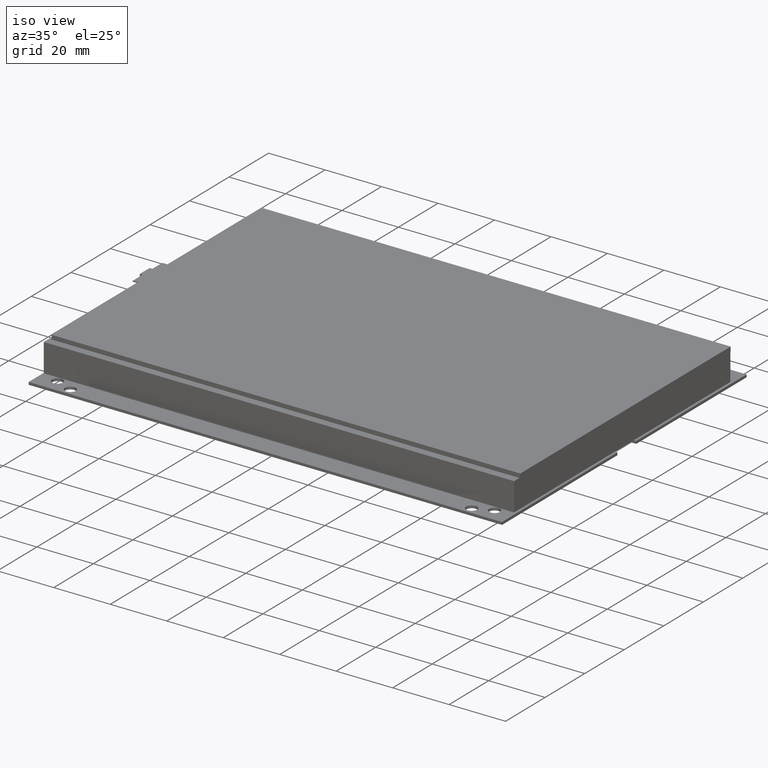
[diagram: clean part render]
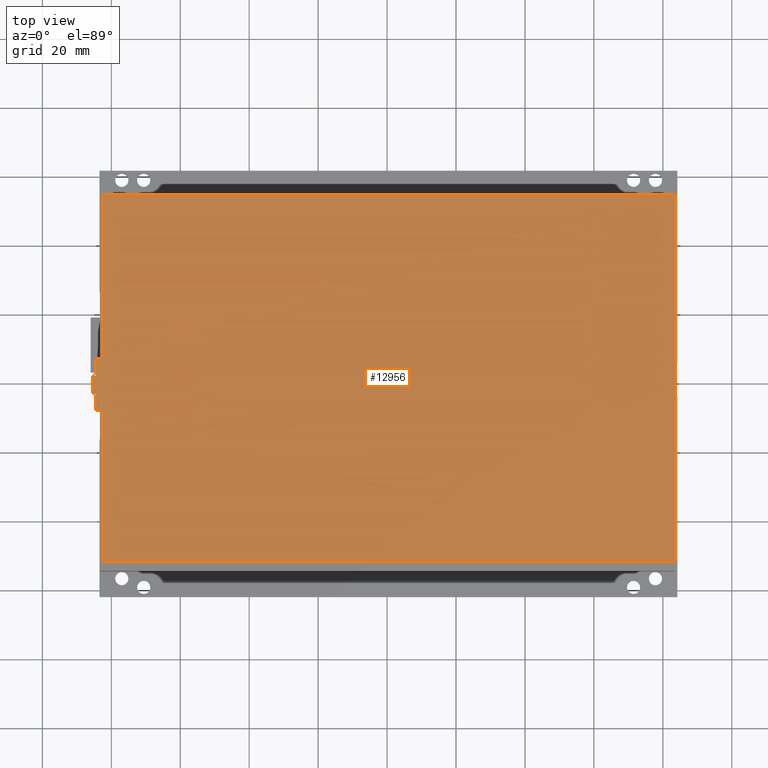
[diagram: tour spotlight — one face highlighted and labeled with its STEP entity id]
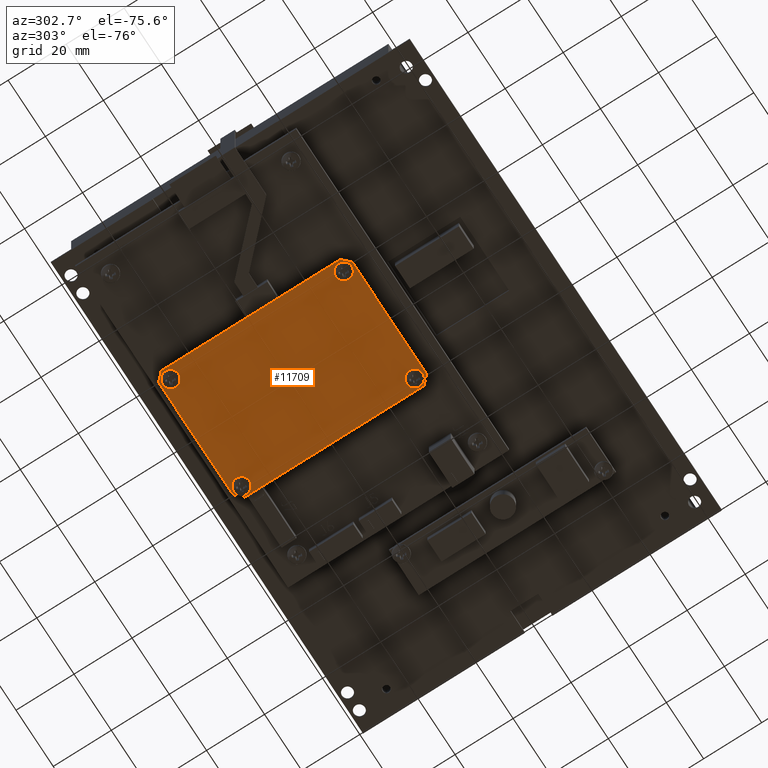
[diagram: tour spotlight — one face highlighted and labeled with its STEP entity id]
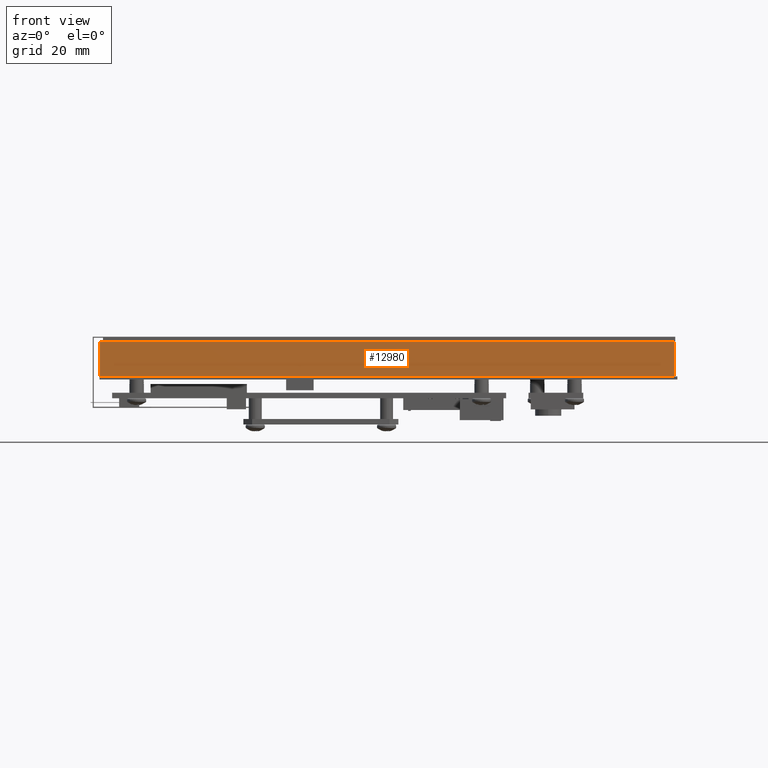
[diagram: tour spotlight — one face highlighted and labeled with its STEP entity id]
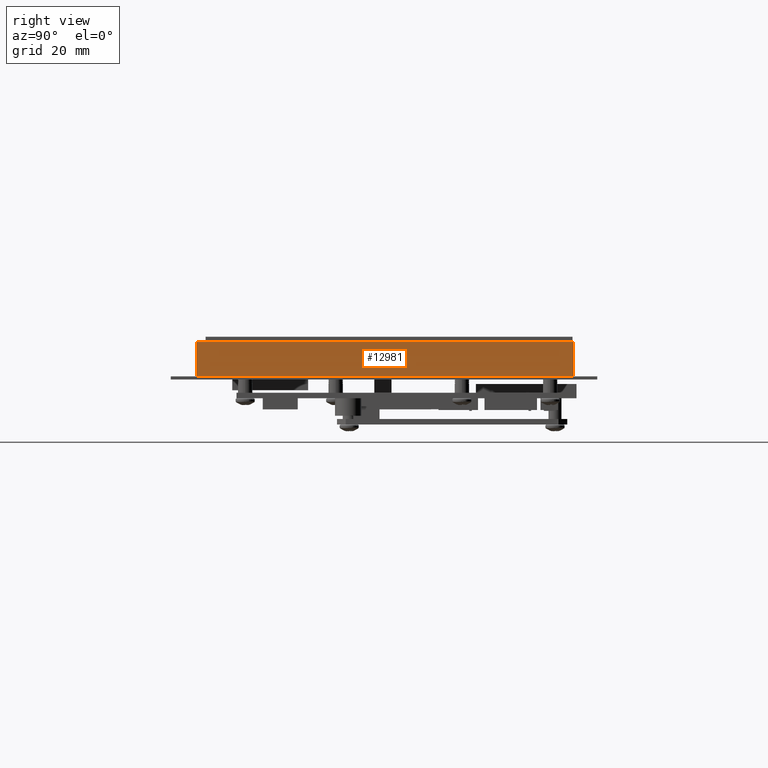
[diagram: tour spotlight — one face highlighted and labeled with its STEP entity id]
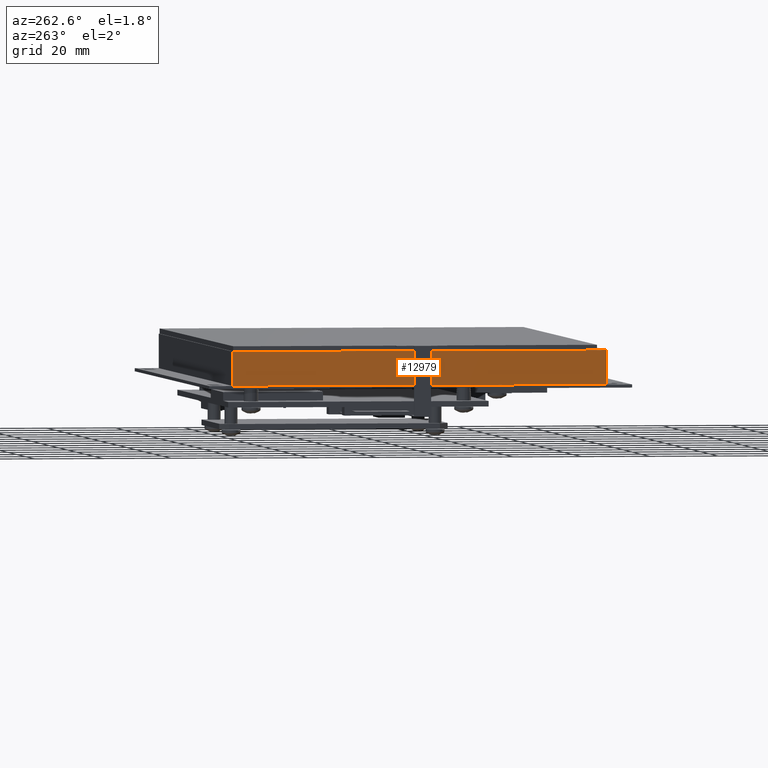
[diagram: tour spotlight — one face highlighted and labeled with its STEP entity id]
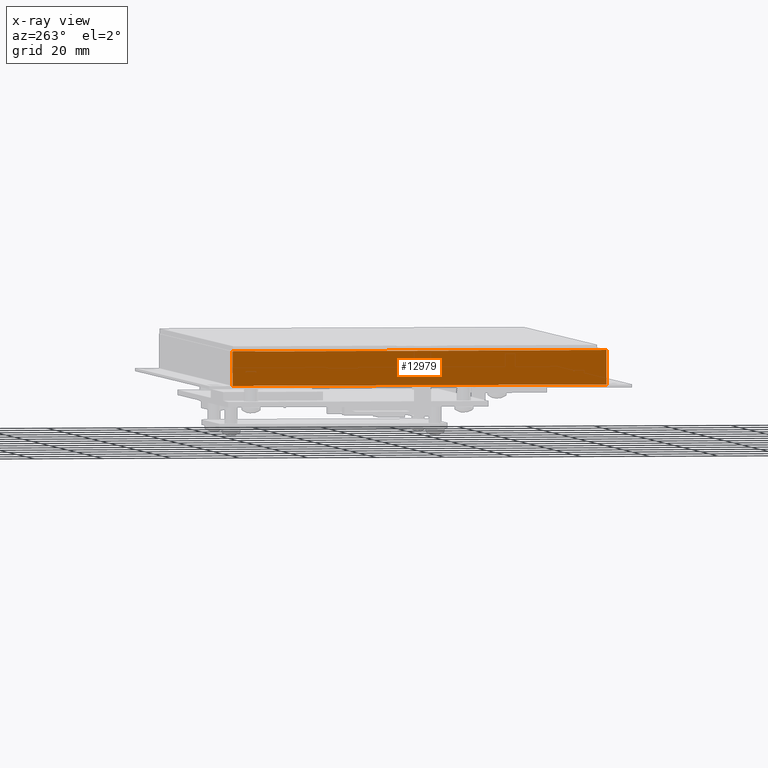
[diagram: x-ray of the same camera — body ghosted, this tour face saturated]
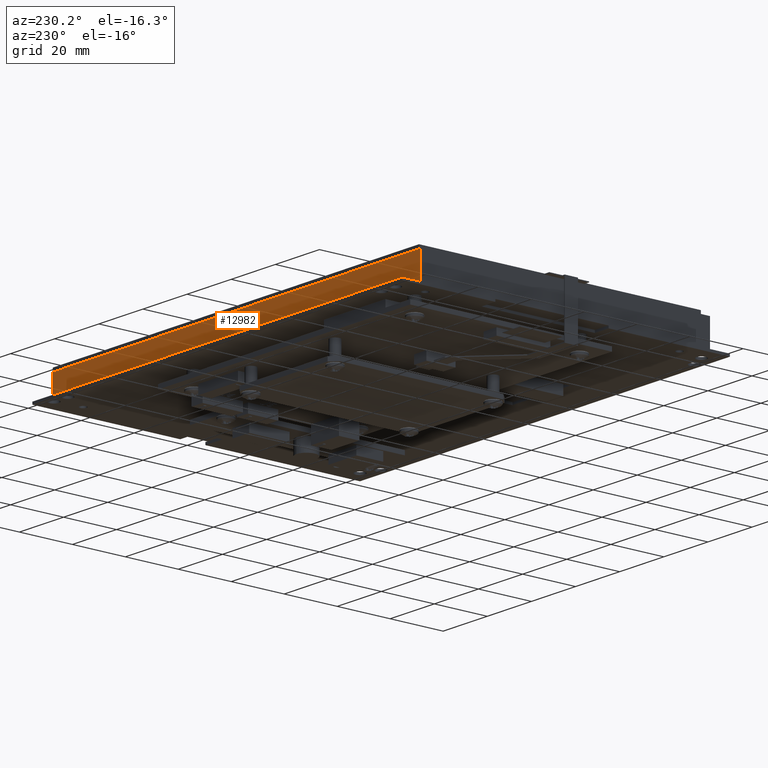
[diagram: tour spotlight — one face highlighted and labeled with its STEP entity id]
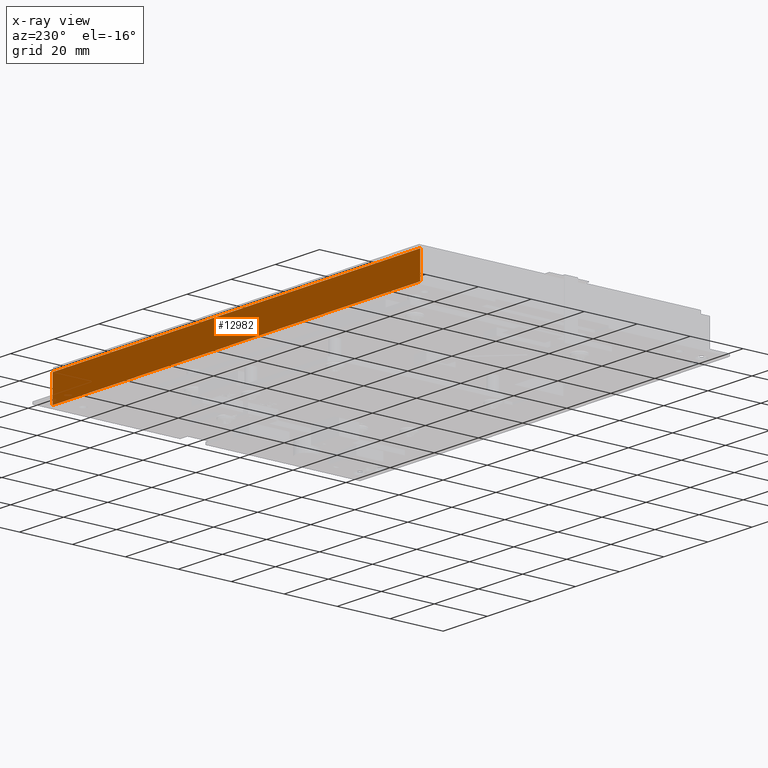
[diagram: x-ray of the same camera — body ghosted, this tour face saturated]
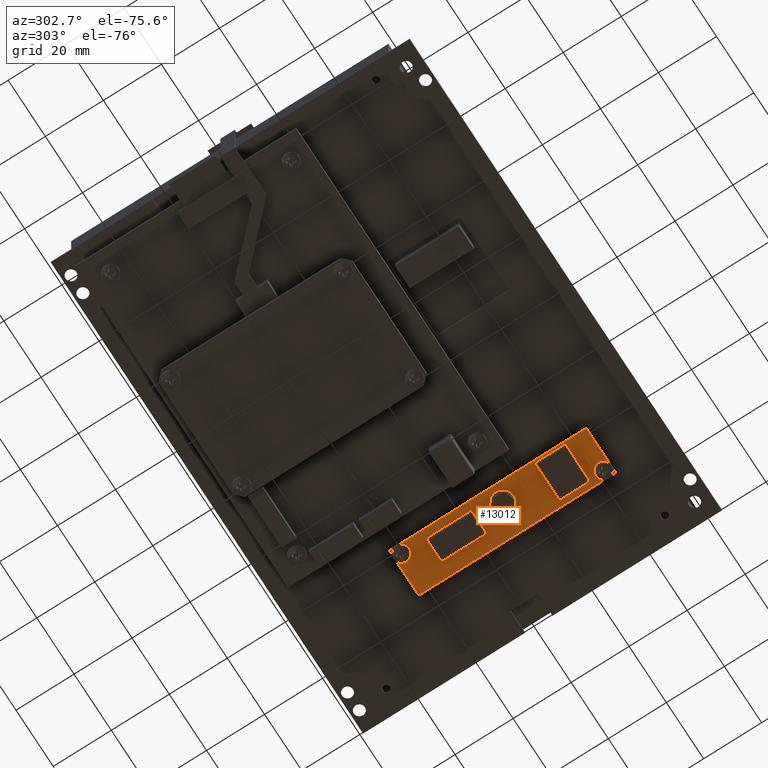
[diagram: tour spotlight — one face highlighted and labeled with its STEP entity id]
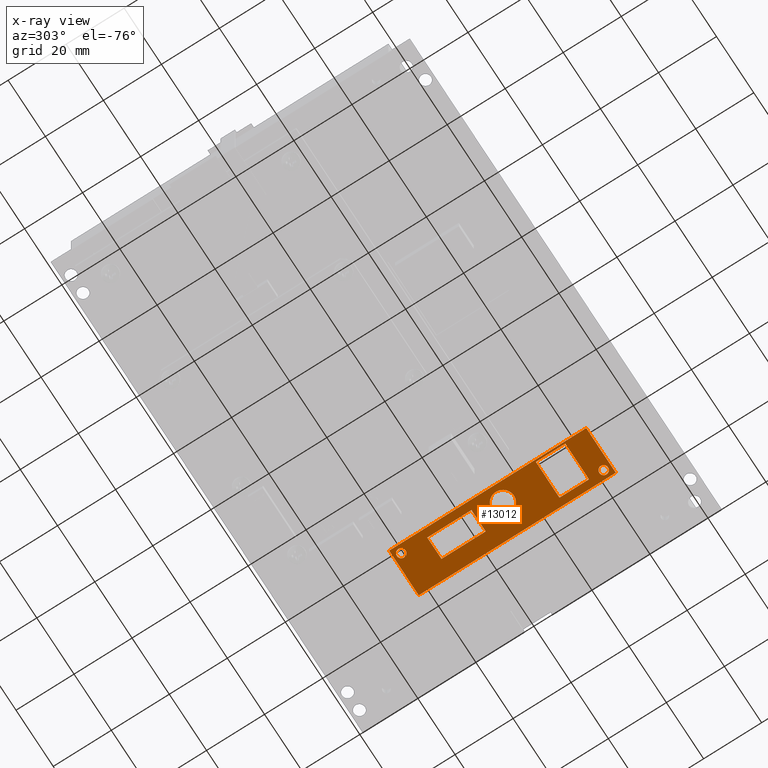
[diagram: x-ray of the same camera — body ghosted, this tour face saturated]
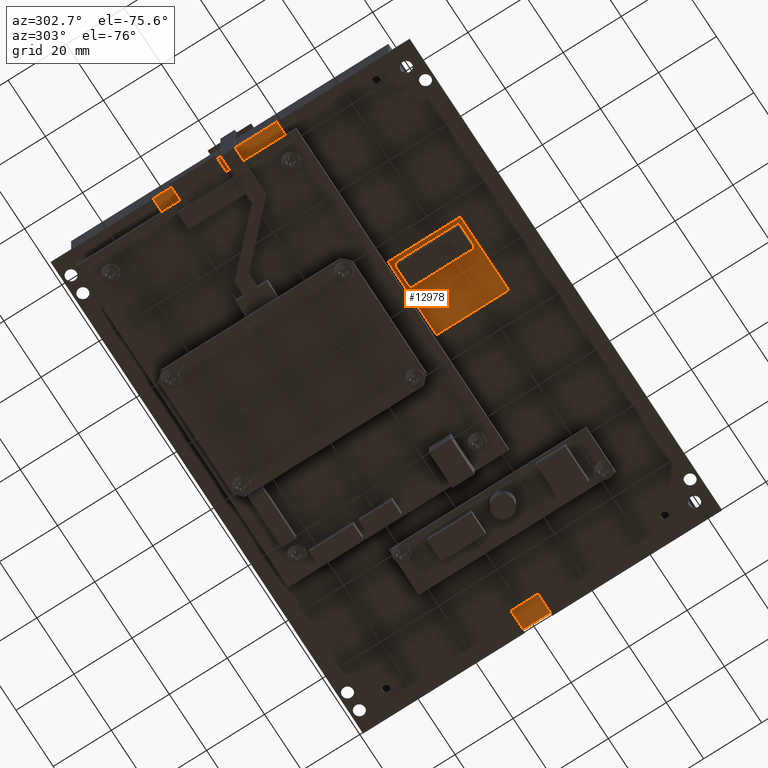
[diagram: tour spotlight — one face highlighted and labeled with its STEP entity id]
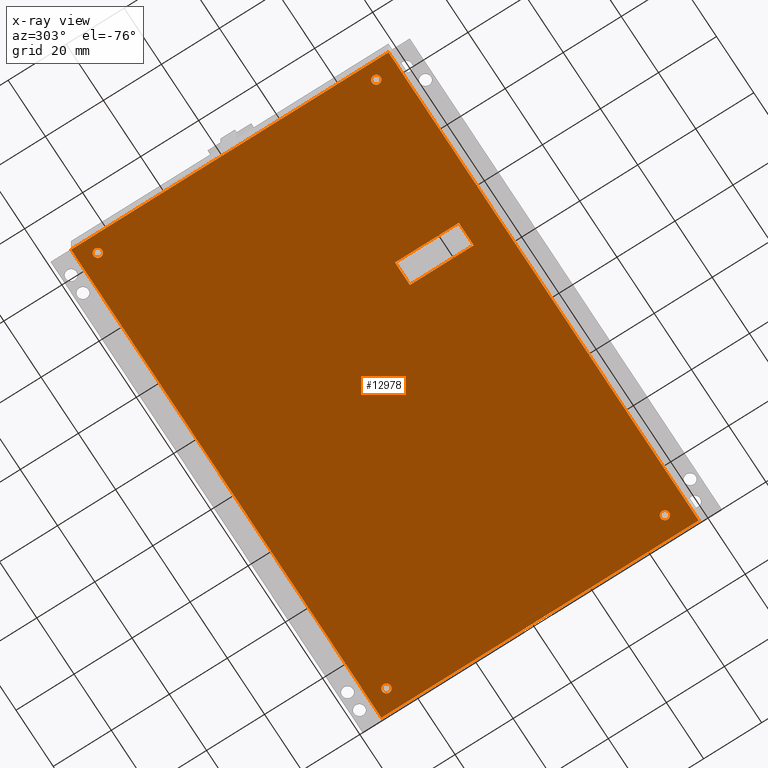
[diagram: x-ray of the same camera — body ghosted, this tour face saturated]
A machine part: a face-by-face anatomy tour. The part has 1311 B-rep faces; the first image is the clean iso view, then the 8 largest visible faces are spotlighted one at a time (largest first), each with its STEP entity span.

Face 1 — top view, entity #12956. In plain terms, the highlighted planar face has unit normal (-0, 0, -1).
Definition (entity closure, byte-faithful):
#653 = VECTOR ( 'NONE', #1216, 39.37007874015748100 ) ;
#656 = VECTOR ( 'NONE', #1245, 39.37007874015748100 ) ;
#657 = VECTOR ( 'NONE', #1227, 39.37007874015748100 ) ;
#660 = VECTOR ( 'NONE', #1236, 39.37007874015748100 ) ;
#665 = VECTOR ( 'NONE', #1263, 39.37007874015748100 ) ;
#666 = VECTOR ( 'NONE', #1254, 39.37007874015748100 ) ;
#668 = VECTOR ( 'NONE', #1261, 39.37007874015748100 ) ;
#670 = VECTOR ( 'NONE', #1266, 39.37007874015748100 ) ;
#671 = VECTOR ( 'NONE', #1269, 39.37007874015748100 ) ;
#672 = VECTOR ( 'NONE', #1272, 39.37007874015748100 ) ;
#673 = VECTOR ( 'NONE', #1275, 39.37007874015748100 ) ;
#674 = VECTOR ( 'NONE', #1278, 39.37007874015748100 ) ;
#826 = AXIS2_PLACEMENT_3D ( 'NONE', #1791, #1802, #1803 ) ;
#1213 = LINE ( 'NONE', #1215, #653 ) ;
#1215 = CARTESIAN_POINT ( 'NONE',  ( -3.267716535433074400, -4.097771990496394800E-016, -2.094488188976378200 ) ) ;
#1216 = DIRECTION ( 'NONE',  ( -1.249000902703301800E-016, 2.370611404217665500E-016, 1.000000000000000000 ) ) ;
#1218 = LINE ( 'NONE', #1244, #656 ) ;
#1225 = LINE ( 'NONE', #1226, #657 ) ;
#1226 = CARTESIAN_POINT ( 'NONE',  ( -3.267716535433074400, 4.097771990496394800E-016, 2.094488188976378200 ) ) ;
#1227 = DIRECTION ( 'NONE',  ( 1.000000000000000000, 2.081270881183332000E-017, -1.249000902703299900E-016 ) ) ;
#1234 = LINE ( 'NONE', #1235, #660 ) ;
#1235 = CARTESIAN_POINT ( 'NONE',  ( 3.267716535433074400, -4.097771990496394800E-016, -2.094488188976377800 ) ) ;
#1236 = DIRECTION ( 'NONE',  ( 1.249000902703301800E-016, -2.370611404217665500E-016, -1.000000000000000000 ) ) ;
#1241 = LINE ( 'NONE', #1262, #665 ) ;
#1244 = CARTESIAN_POINT ( 'NONE',  ( 3.267716535433074400, -4.097771990496394800E-016, -2.094488188976377800 ) ) ;
#1245 = DIRECTION ( 'NONE',  ( 1.249000902703301800E-016, -2.370611404217665500E-016, -1.000000000000000000 ) ) ;
#1252 = LINE ( 'NONE', #1253, #666 ) ;
#1253 = CARTESIAN_POINT ( 'NONE',  ( -3.267716535433074400, -4.097771990496394800E-016, -2.094488188976378200 ) ) ;
#1254 = DIRECTION ( 'NONE',  ( -1.000000000000000000, -2.081270881183333800E-017, 4.129895889795387300E-017 ) ) ;
#1258 = LINE ( 'NONE', #1260, #668 ) ;
#1260 = CARTESIAN_POINT ( 'NONE',  ( 3.267716535433074400, 0.0000000000000000000, -0.2244094488188976600 ) ) ;
#1261 = DIRECTION ( 'NONE',  ( 1.000000000000000000, 2.081270881183332000E-017, -1.249000902703299900E-016 ) ) ;
#1262 = CARTESIAN_POINT ( 'NONE',  ( 3.347716535433074500, 0.0000000000000000000, -0.02755905511811029100 ) ) ;
#1263 = DIRECTION ( 'NONE',  ( -1.249000902703301800E-016, 2.370611404217665500E-016, 1.000000000000000000 ) ) ;
#1264 = LINE ( 'NONE', #1265, #670 ) ;
#1265 = CARTESIAN_POINT ( 'NONE',  ( 3.347716535433074500, 0.0000000000000000000, -0.02755905511811029100 ) ) ;
#1266 = DIRECTION ( 'NONE',  ( 1.000000000000000000, 2.081270881183339700E-017, 2.034470243527754500E-016 ) ) ;
#1267 = LINE ( 'NONE', #1268, #671 ) ;
#1268 = CARTESIAN_POINT ( 'NONE',  ( 3.385527535433074900, 0.0000000000000000000, -0.02755905511811027400 ) ) ;
#1269 = DIRECTION ( 'NONE',  ( -1.249000902703301800E-016, 2.370611404217665500E-016, 1.000000000000000000 ) ) ;
#1270 = LINE ( 'NONE', #1271, #672 ) ;
#1271 = CARTESIAN_POINT ( 'NONE',  ( 3.347716535433074500, 0.0000000000000000000, 0.1692913385826771700 ) ) ;
#1272 = DIRECTION ( 'NONE',  ( -1.000000000000000000, -2.081270881183332000E-017, 1.249000902703299900E-016 ) ) ;
#1273 = LINE ( 'NONE', #1274, #673 ) ;
#1274 = CARTESIAN_POINT ( 'NONE',  ( 3.347716535433074500, 0.0000000000000000000, 0.3661417322834645300 ) ) ;
#1275 = DIRECTION ( 'NONE',  ( -1.249000902703301800E-016, 2.370611404217665500E-016, 1.000000000000000000 ) ) ;
#1276 = LINE ( 'NONE', #1277, #674 ) ;
#1277 = CARTESIAN_POINT ( 'NONE',  ( 3.267716535433074400, 0.0000000000000000000, 0.3661417322834645300 ) ) ;
#1278 = DIRECTION ( 'NONE',  ( -1.000000000000000000, -2.081270881183332000E-017, 1.249000902703299900E-016 ) ) ;
#1791 = CARTESIAN_POINT ( 'NONE',  ( -3.267716535433074400, 4.097771990496394800E-016, 2.094488188976378200 ) ) ;
#1799 = FACE_OUTER_BOUND ( 'NONE', #12767, .T. ) ;
#1800 = PLANE ( 'NONE',  #826 ) ;
#1802 = DIRECTION ( 'NONE',  ( 2.081270881183340900E-017, 1.000000000000000000, -2.370611404217665500E-016 ) ) ;
#1803 = DIRECTION ( 'NONE',  ( -1.249000902703301800E-016, 2.370611404217665500E-016, 1.000000000000000000 ) ) ;
#8457 = CARTESIAN_POINT ( 'NONE',  ( -3.267716535433074400, 4.097771990496394800E-016, 2.094488188976378200 ) ) ;
#8475 = CARTESIAN_POINT ( 'NONE',  ( 3.267716535433074400, 4.097771990496394800E-016, 2.094488188976378200 ) ) ;
#8492 = CARTESIAN_POINT ( 'NONE',  ( 3.267716535433074400, -4.097771990496394800E-016, -2.094488188976377800 ) ) ;
#8506 = CARTESIAN_POINT ( 'NONE',  ( 3.347716535433074500, 0.0000000000000000000, -0.02755905511811029100 ) ) ;
#8508 = CARTESIAN_POINT ( 'NONE',  ( 3.267716535433074400, 0.0000000000000000000, -0.2244094488188976600 ) ) ;
#8509 = CARTESIAN_POINT ( 'NONE',  ( 3.347716535433074500, 0.0000000000000000000, 0.1692913385826771700 ) ) ;
#8518 = CARTESIAN_POINT ( 'NONE',  ( -3.267716535433074400, -4.097771990496394800E-016, -2.094488188976378200 ) ) ;
#8524 = CARTESIAN_POINT ( 'NONE',  ( 3.347716535433074500, 0.0000000000000000000, -0.2244094488188976600 ) ) ;
#8526 = CARTESIAN_POINT ( 'NONE',  ( 3.267716535433074400, 0.0000000000000000000, 0.3661417322834645300 ) ) ;
#8567 = CARTESIAN_POINT ( 'NONE',  ( 3.385527535433074900, 0.0000000000000000000, 0.1692913385826771700 ) ) ;
#8570 = CARTESIAN_POINT ( 'NONE',  ( 3.347716535433074500, -1.365923996832131600E-016, 0.3661417322834645300 ) ) ;
#8573 = CARTESIAN_POINT ( 'NONE',  ( 3.385527535433074900, 0.0000000000000000000, -0.02755905511811027400 ) ) ;
#12120 = EDGE_CURVE ( 'NONE', #16104, #16043, #1213, .T. ) ;
#12124 = EDGE_CURVE ( 'NONE', #16043, #16061, #1225, .T. ) ;
#12127 = EDGE_CURVE ( 'NONE', #16061, #16112, #1234, .T. ) ;
#12767 = EDGE_LOOP ( 'NONE', ( #13679, #13680, #13681, #13682, #13683, #13684, #13685, #13686, #13687, #13688, #13689, #13690 ) ) ;
#12810 = EDGE_CURVE ( 'NONE', #16094, #16078, #1218, .T. ) ;
#12813 = EDGE_CURVE ( 'NONE', #16078, #16104, #1252, .T. ) ;
#12815 = EDGE_CURVE ( 'NONE', #16094, #16110, #1258, .T. ) ;
#12816 = EDGE_CURVE ( 'NONE', #16110, #16092, #1241, .T. ) ;
#12817 = EDGE_CURVE ( 'NONE', #16092, #16159, #1264, .T. ) ;
#12818 = EDGE_CURVE ( 'NONE', #16159, #16153, #1267, .T. ) ;
#12819 = EDGE_CURVE ( 'NONE', #16153, #16095, #1270, .T. ) ;
#12820 = EDGE_CURVE ( 'NONE', #16095, #16156, #1273, .T. ) ;
#12821 = EDGE_CURVE ( 'NONE', #16156, #16112, #1276, .T. ) ;
#12956 = ADVANCED_FACE ( 'NONE', ( #1799 ), #1800, .F. ) ;
#13679 = ORIENTED_EDGE ( 'NONE', *, *, #12120, .F. ) ;
#13680 = ORIENTED_EDGE ( 'NONE', *, *, #12813, .F. ) ;
#13681 = ORIENTED_EDGE ( 'NONE', *, *, #12810, .F. ) ;
#13682 = ORIENTED_EDGE ( 'NONE', *, *, #12815, .T. ) ;
#13683 = ORIENTED_EDGE ( 'NONE', *, *, #12816, .T. ) ;
#13684 = ORIENTED_EDGE ( 'NONE', *, *, #12817, .T. ) ;
#13685 = ORIENTED_EDGE ( 'NONE', *, *, #12818, .T. ) ;
#13686 = ORIENTED_EDGE ( 'NONE', *, *, #12819, .T. ) ;
#13687 = ORIENTED_EDGE ( 'NONE', *, *, #12820, .T. ) ;
#13688 = ORIENTED_EDGE ( 'NONE', *, *, #12821, .T. ) ;
#13689 = ORIENTED_EDGE ( 'NONE', *, *, #12127, .F. ) ;
#13690 = ORIENTED_EDGE ( 'NONE', *, *, #12124, .F. ) ;
#16043 = VERTEX_POINT ( 'NONE', #8457 ) ;
#16061 = VERTEX_POINT ( 'NONE', #8475 ) ;
#16078 = VERTEX_POINT ( 'NONE', #8492 ) ;
#16092 = VERTEX_POINT ( 'NONE', #8506 ) ;
#16094 = VERTEX_POINT ( 'NONE', #8508 ) ;
#16095 = VERTEX_POINT ( 'NONE', #8509 ) ;
#16104 = VERTEX_POINT ( 'NONE', #8518 ) ;
#16110 = VERTEX_POINT ( 'NONE', #8524 ) ;
#16112 = VERTEX_POINT ( 'NONE', #8526 ) ;
#16153 = VERTEX_POINT ( 'NONE', #8567 ) ;
#16156 = VERTEX_POINT ( 'NONE', #8570 ) ;
#16159 = VERTEX_POINT ( 'NONE', #8573 ) ;

Face 2 — auxiliary view, entity #11709. In plain terms, the highlighted planar face has unit normal (-0, -0, 1).
Definition (entity closure, byte-faithful):
#8169 = CARTESIAN_POINT ( 'NONE',  ( 0.6149999999999999900, 0.3619999999999991600, 1.094999999999996400 ) ) ;
#8170 = DIRECTION ( 'NONE',  ( 4.930380657631331700E-031, 1.000000000000000000, 4.930380657631331400E-032 ) ) ;
#8171 = DIRECTION ( 'NONE',  ( 0.0000000000000000000, 0.0000000000000000000, 1.000000000000000000 ) ) ;
#8201 = CARTESIAN_POINT ( 'NONE',  ( -0.8849999999999983400, 0.3619999999999996000, -1.254999999999995700 ) ) ;
#8202 = DIRECTION ( 'NONE',  ( 4.930380657631331700E-031, 1.000000000000000000, 4.930380657631331400E-032 ) ) ;
#8203 = DIRECTION ( 'NONE',  ( 0.0000000000000000000, 0.0000000000000000000, 1.000000000000000000 ) ) ;
#8862 = CIRCLE ( 'NONE', #8864, 0.06249999999999981300 ) ;
#8864 = AXIS2_PLACEMENT_3D ( 'NONE', #8169, #8170, #8171 ) ;
#8866 = CIRCLE ( 'NONE', #8868, 0.06249999999999981300 ) ;
#8868 = AXIS2_PLACEMENT_3D ( 'NONE', #8201, #8202, #8203 ) ;
#10155 = VERTEX_POINT ( 'NONE', #11312 ) ;
#10156 = VERTEX_POINT ( 'NONE', #11305 ) ;
#10235 = CIRCLE ( 'NONE', #10263, 0.06249999999999981300 ) ;
#10261 = CIRCLE ( 'NONE', #10276, 0.06249999999999967400 ) ;
#10263 = AXIS2_PLACEMENT_3D ( 'NONE', #16376, #16377, #16378 ) ;
#10276 = AXIS2_PLACEMENT_3D ( 'NONE', #16388, #16389, #16390 ) ;
#10337 = VECTOR ( 'NONE', #17867, 39.37007874015748900 ) ;
#10418 = CIRCLE ( 'NONE', #10466, 0.06249999999999967400 ) ;
#10462 = CIRCLE ( 'NONE', #10474, 0.06249999999999981300 ) ;
#10466 = AXIS2_PLACEMENT_3D ( 'NONE', #17849, #17850, #17851 ) ;
#10470 = CIRCLE ( 'NONE', #10482, 0.06249999999999981300 ) ;
#10474 = AXIS2_PLACEMENT_3D ( 'NONE', #17852, #17853, #17854 ) ;
#10478 = CIRCLE ( 'NONE', #10492, 0.06249999999999981300 ) ;
#10482 = AXIS2_PLACEMENT_3D ( 'NONE', #17857, #17858, #17859 ) ;
#10486 = VECTOR ( 'NONE', #17865, 39.37007874015748100 ) ;
#10492 = AXIS2_PLACEMENT_3D ( 'NONE', #17862, #17863, #17864 ) ;
#10496 = VECTOR ( 'NONE', #17870, 39.37007874015748100 ) ;
#10497 = VECTOR ( 'NONE', #17873, 39.37007874015748900 ) ;
#10498 = VECTOR ( 'NONE', #17876, 39.37007874015748100 ) ;
#10499 = VECTOR ( 'NONE', #17879, 39.37007874015748900 ) ;
#10500 = VECTOR ( 'NONE', #17882, 39.37007874015748100 ) ;
#10501 = VECTOR ( 'NONE', #17885, 39.37007874015748100 ) ;
#10530 = AXIS2_PLACEMENT_3D ( 'NONE', #18010, #18014, #18015 ) ;
#10745 = EDGE_CURVE ( 'NONE', #11061, #11034, #10235, .T. ) ;
#10749 = EDGE_CURVE ( 'NONE', #11047, #11032, #10261, .T. ) ;
#11032 = VERTEX_POINT ( 'NONE', #17476 ) ;
#11034 = VERTEX_POINT ( 'NONE', #17478 ) ;
#11038 = VERTEX_POINT ( 'NONE', #17482 ) ;
#11047 = VERTEX_POINT ( 'NONE', #17491 ) ;
#11053 = VERTEX_POINT ( 'NONE', #17497 ) ;
#11059 = VERTEX_POINT ( 'NONE', #17503 ) ;
#11061 = VERTEX_POINT ( 'NONE', #17505 ) ;
#11071 = VERTEX_POINT ( 'NONE', #17515 ) ;
#11223 = VERTEX_POINT ( 'NONE', #17667 ) ;
#11225 = VERTEX_POINT ( 'NONE', #17669 ) ;
#11229 = VERTEX_POINT ( 'NONE', #17673 ) ;
#11281 = VERTEX_POINT ( 'NONE', #17674 ) ;
#11282 = VERTEX_POINT ( 'NONE', #17675 ) ;
#11283 = VERTEX_POINT ( 'NONE', #17676 ) ;
#11305 = CARTESIAN_POINT ( 'NONE',  ( -0.9199999999999983700, 0.3619999999999996000, -1.394999999999996000 ) ) ;
#11312 = CARTESIAN_POINT ( 'NONE',  ( -1.019999999999998200, 0.3619999999999996000, -1.294999999999996400 ) ) ;
#11573 = ORIENTED_EDGE ( 'NONE', *, *, #15185, .F. ) ;
#11574 = ORIENTED_EDGE ( 'NONE', *, *, #11672, .F. ) ;
#11575 = ORIENTED_EDGE ( 'NONE', *, *, #15177, .F. ) ;
#11576 = ORIENTED_EDGE ( 'NONE', *, *, #11671, .F. ) ;
#11577 = ORIENTED_EDGE ( 'NONE', *, *, #11673, .T. ) ;
#11578 = ORIENTED_EDGE ( 'NONE', *, *, #11674, .T. ) ;
#11579 = ORIENTED_EDGE ( 'NONE', *, *, #11675, .T. ) ;
#11580 = ORIENTED_EDGE ( 'NONE', *, *, #11676, .T. ) ;
#11581 = ORIENTED_EDGE ( 'NONE', *, *, #11677, .T. ) ;
#11582 = ORIENTED_EDGE ( 'NONE', *, *, #11678, .T. ) ;
#11583 = ORIENTED_EDGE ( 'NONE', *, *, #11679, .T. ) ;
#11584 = ORIENTED_EDGE ( 'NONE', *, *, #11680, .T. ) ;
#11585 = ORIENTED_EDGE ( 'NONE', *, *, #10745, .F. ) ;
#11586 = ORIENTED_EDGE ( 'NONE', *, *, #11670, .F. ) ;
#11587 = ORIENTED_EDGE ( 'NONE', *, *, #10749, .F. ) ;
#11588 = ORIENTED_EDGE ( 'NONE', *, *, #11669, .F. ) ;
#11669 = EDGE_CURVE ( 'NONE', #11032, #11047, #10418, .T. ) ;
#11670 = EDGE_CURVE ( 'NONE', #11034, #11061, #10462, .T. ) ;
#11671 = EDGE_CURVE ( 'NONE', #11059, #11038, #10470, .T. ) ;
#11672 = EDGE_CURVE ( 'NONE', #11053, #11071, #10478, .T. ) ;
#11673 = EDGE_CURVE ( 'NONE', #11223, #11225, #17855, .T. ) ;
#11674 = EDGE_CURVE ( 'NONE', #11225, #11229, #17861, .T. ) ;
#11675 = EDGE_CURVE ( 'NONE', #11229, #10156, #17868, .T. ) ;
#11676 = EDGE_CURVE ( 'NONE', #10156, #10155, #17871, .T. ) ;
#11677 = EDGE_CURVE ( 'NONE', #10155, #11281, #17874, .T. ) ;
#11678 = EDGE_CURVE ( 'NONE', #11281, #11282, #17877, .T. ) ;
#11679 = EDGE_CURVE ( 'NONE', #11282, #11283, #17880, .T. ) ;
#11680 = EDGE_CURVE ( 'NONE', #11283, #11223, #17883, .T. ) ;
#11709 = ADVANCED_FACE ( 'NONE', ( #18007, #18009, #18011, #18013, #18006 ), #18003, .F. ) ;
#13506 = EDGE_LOOP ( 'NONE', ( #11585, #11586 ) ) ;
#13518 = EDGE_LOOP ( 'NONE', ( #11587, #11588 ) ) ;
#13524 = EDGE_LOOP ( 'NONE', ( #11573, #11574 ) ) ;
#13544 = EDGE_LOOP ( 'NONE', ( #11577, #11578, #11579, #11580, #11581, #11582, #11583, #11584 ) ) ;
#13549 = EDGE_LOOP ( 'NONE', ( #11575, #11576 ) ) ;
#15177 = EDGE_CURVE ( 'NONE', #11038, #11059, #8862, .T. ) ;
#15185 = EDGE_CURVE ( 'NONE', #11071, #11053, #8866, .T. ) ;
#16376 = CARTESIAN_POINT ( 'NONE',  ( -0.8849999999999987900, 0.3619999999999996000, 1.094999999999996400 ) ) ;
#16377 = DIRECTION ( 'NONE',  ( 4.930380657631331700E-031, 1.000000000000000000, 4.930380657631331400E-032 ) ) ;
#16378 = DIRECTION ( 'NONE',  ( 0.0000000000000000000, 0.0000000000000000000, -1.000000000000000000 ) ) ;
#16388 = CARTESIAN_POINT ( 'NONE',  ( 0.6149999999999997700, 0.3619999999999996000, -1.254999999999996300 ) ) ;
#16389 = DIRECTION ( 'NONE',  ( 4.930380657631331700E-031, 1.000000000000000000, 4.930380657631331400E-032 ) ) ;
#16390 = DIRECTION ( 'NONE',  ( 0.0000000000000000000, 0.0000000000000000000, -1.000000000000000000 ) ) ;
#17476 = CARTESIAN_POINT ( 'NONE',  ( 0.6149999999999997700, 0.3619999999999996000, -1.192499999999996300 ) ) ;
#17478 = CARTESIAN_POINT ( 'NONE',  ( -0.8849999999999987900, 0.3619999999999996000, 1.157499999999996400 ) ) ;
#17482 = CARTESIAN_POINT ( 'NONE',  ( 0.6149999999999999900, 0.3619999999999991600, 1.032499999999996400 ) ) ;
#17491 = CARTESIAN_POINT ( 'NONE',  ( 0.6149999999999997700, 0.3619999999999996000, -1.317499999999995900 ) ) ;
#17497 = CARTESIAN_POINT ( 'NONE',  ( -0.8849999999999983400, 0.3619999999999996000, -1.192499999999995900 ) ) ;
#17503 = CARTESIAN_POINT ( 'NONE',  ( 0.6149999999999999900, 0.3619999999999991600, 1.157499999999996400 ) ) ;
#17505 = CARTESIAN_POINT ( 'NONE',  ( -0.8849999999999987900, 0.3619999999999996000, 1.032499999999996600 ) ) ;
#17515 = CARTESIAN_POINT ( 'NONE',  ( -0.8849999999999983400, 0.3619999999999996000, -1.317499999999995700 ) ) ;
#17667 = CARTESIAN_POINT ( 'NONE',  ( 0.7499999999999990000, 0.3619999999999991600, 1.134999999999996000 ) ) ;
#17669 = CARTESIAN_POINT ( 'NONE',  ( 0.7499999999999986700, 0.3619999999999996000, -1.294999999999995300 ) ) ;
#17673 = CARTESIAN_POINT ( 'NONE',  ( 0.6499999999999986900, 0.3619999999999991600, -1.394999999999996000 ) ) ;
#17674 = CARTESIAN_POINT ( 'NONE',  ( -1.019999999999998500, 0.3619999999999991600, 1.134999999999994200 ) ) ;
#17675 = CARTESIAN_POINT ( 'NONE',  ( -0.9199999999999970400, 0.3619999999999991600, 1.234999999999996800 ) ) ;
#17676 = CARTESIAN_POINT ( 'NONE',  ( 0.6499999999999989100, 0.3619999999999991600, 1.234999999999996500 ) ) ;
#17849 = CARTESIAN_POINT ( 'NONE',  ( 0.6149999999999997700, 0.3619999999999996000, -1.254999999999996300 ) ) ;
#17850 = DIRECTION ( 'NONE',  ( 4.930380657631331700E-031, 1.000000000000000000, 4.930380657631331400E-032 ) ) ;
#17851 = DIRECTION ( 'NONE',  ( 0.0000000000000000000, 0.0000000000000000000, -1.000000000000000000 ) ) ;
#17852 = CARTESIAN_POINT ( 'NONE',  ( -0.8849999999999987900, 0.3619999999999996000, 1.094999999999996400 ) ) ;
#17853 = DIRECTION ( 'NONE',  ( 4.930380657631331700E-031, 1.000000000000000000, 4.930380657631331400E-032 ) ) ;
#17854 = DIRECTION ( 'NONE',  ( 0.0000000000000000000, 0.0000000000000000000, -1.000000000000000000 ) ) ;
#17855 = LINE ( 'NONE', #17856, #10486 ) ;
#17856 = CARTESIAN_POINT ( 'NONE',  ( 0.7499999999999986700, 0.3619999999999996000, -1.394999999999996000 ) ) ;
#17857 = CARTESIAN_POINT ( 'NONE',  ( 0.6149999999999999900, 0.3619999999999991600, 1.094999999999996400 ) ) ;
#17858 = DIRECTION ( 'NONE',  ( 4.930380657631331700E-031, 1.000000000000000000, 4.930380657631331400E-032 ) ) ;
#17859 = DIRECTION ( 'NONE',  ( 0.0000000000000000000, 0.0000000000000000000, 1.000000000000000000 ) ) ;
#17861 = LINE ( 'NONE', #17866, #10337 ) ;
#17862 = CARTESIAN_POINT ( 'NONE',  ( -0.8849999999999983400, 0.3619999999999996000, -1.254999999999995700 ) ) ;
#17863 = DIRECTION ( 'NONE',  ( 4.930380657631331700E-031, 1.000000000000000000, 4.930380657631331400E-032 ) ) ;
#17864 = DIRECTION ( 'NONE',  ( 0.0000000000000000000, 0.0000000000000000000, 1.000000000000000000 ) ) ;
#17865 = DIRECTION ( 'NONE',  ( 1.137174657178534300E-030, 4.930380657631339100E-032, -1.000000000000000000 ) ) ;
#17866 = CARTESIAN_POINT ( 'NONE',  ( 0.6499999999999986900, 0.3619999999999991600, -1.394999999999996000 ) ) ;
#17867 = DIRECTION ( 'NONE',  ( -0.7071067811865455700, -0.0000000000000000000, -0.7071067811865494600 ) ) ;
#17868 = LINE ( 'NONE', #17869, #10496 ) ;
#17869 = CARTESIAN_POINT ( 'NONE',  ( 0.7499999999999986700, 0.3619999999999996000, -1.394999999999996000 ) ) ;
#17870 = DIRECTION ( 'NONE',  ( -1.000000000000000000, -1.972152263052532600E-031, 1.137174657178532600E-030 ) ) ;
#17871 = LINE ( 'NONE', #17872, #10497 ) ;
#17872 = CARTESIAN_POINT ( 'NONE',  ( -1.019999999999998200, 0.3619999999999996000, -1.294999999999996400 ) ) ;
#17873 = DIRECTION ( 'NONE',  ( -0.7071067811865474600, -3.389636702121541700E-031, 0.7071067811865474600 ) ) ;
#17874 = LINE ( 'NONE', #17875, #10498 ) ;
#17875 = CARTESIAN_POINT ( 'NONE',  ( -1.019999999999998200, 0.3619999999999991600, -1.394999999999996000 ) ) ;
#17876 = DIRECTION ( 'NONE',  ( -1.137174657178534300E-030, -4.930380657631339100E-032, 1.000000000000000000 ) ) ;
#17877 = LINE ( 'NONE', #17878, #10499 ) ;
#17878 = CARTESIAN_POINT ( 'NONE',  ( -0.9199999999999976000, 0.3619999999999991600, 1.234999999999996500 ) ) ;
#17879 = DIRECTION ( 'NONE',  ( 0.7071067811865435800, 4.930380657631333600E-032, 0.7071067811865513500 ) ) ;
#17880 = LINE ( 'NONE', #17881, #10500 ) ;
#17881 = CARTESIAN_POINT ( 'NONE',  ( 0.7499999999999990000, 0.3619999999999991600, 1.234999999999996300 ) ) ;
#17882 = DIRECTION ( 'NONE',  ( 1.000000000000000000, -1.479114197289399300E-031, -1.543416945573040500E-016 ) ) ;
#17883 = LINE ( 'NONE', #17884, #10501 ) ;
#17884 = CARTESIAN_POINT ( 'NONE',  ( 0.7499999999999990000, 0.3619999999999991600, 1.134999999999996000 ) ) ;
#17885 = DIRECTION ( 'NONE',  ( 0.7071067811865465700, 3.882674767884676700E-031, -0.7071067811865484600 ) ) ;
#18003 = PLANE ( 'NONE',  #10530 ) ;
#18006 = FACE_BOUND ( 'NONE', #13518, .T. ) ;
#18007 = FACE_BOUND ( 'NONE', #13524, .T. ) ;
#18009 = FACE_BOUND ( 'NONE', #13549, .T. ) ;
#18010 = CARTESIAN_POINT ( 'NONE',  ( 0.7499999999999986700, 0.3619999999999996000, -1.394999999999996000 ) ) ;
#18011 = FACE_OUTER_BOUND ( 'NONE', #13544, .T. ) ;
#18013 = FACE_BOUND ( 'NONE', #13506, .T. ) ;
#18014 = DIRECTION ( 'NONE',  ( -4.930380657631331700E-031, -1.000000000000000000, -4.930380657631339100E-032 ) ) ;
#18015 = DIRECTION ( 'NONE',  ( 1.137174657178534300E-030, 4.930380657631339100E-032, -1.000000000000000000 ) ) ;

Face 3 — front view, entity #12980. In plain terms, the highlighted planar face has unit normal (0, 1, 0).
Definition (entity closure, byte-faithful):
#737 = VECTOR ( 'NONE', #1438, 39.37007874015748100 ) ;
#750 = VECTOR ( 'NONE', #1467, 39.37007874015748100 ) ;
#754 = VECTOR ( 'NONE', #1476, 39.37007874015748100 ) ;
#755 = VECTOR ( 'NONE', #1479, 39.37007874015748100 ) ;
#850 = AXIS2_PLACEMENT_3D ( 'NONE', #1915, #1927, #1928 ) ;
#1431 = LINE ( 'NONE', #1437, #737 ) ;
#1437 = CARTESIAN_POINT ( 'NONE',  ( -3.279527559055118100, -2.153543307086614300, 0.0000000000000000000 ) ) ;
#1438 = DIRECTION ( 'NONE',  ( 1.000000000000000000, -8.330004686563300100E-017, 0.0000000000000000000 ) ) ;
#1458 = LINE ( 'NONE', #1466, #750 ) ;
#1466 = CARTESIAN_POINT ( 'NONE',  ( -3.279527559055118100, -2.153543307086614300, 0.3937007874015748300 ) ) ;
#1467 = DIRECTION ( 'NONE',  ( -0.0000000000000000000, -0.0000000000000000000, -1.000000000000000000 ) ) ;
#1474 = LINE ( 'NONE', #1475, #754 ) ;
#1475 = CARTESIAN_POINT ( 'NONE',  ( 3.279527559055118100, -2.153543307086614800, 0.3937007874015748300 ) ) ;
#1476 = DIRECTION ( 'NONE',  ( -0.0000000000000000000, -0.0000000000000000000, -1.000000000000000000 ) ) ;
#1477 = LINE ( 'NONE', #1478, #755 ) ;
#1478 = CARTESIAN_POINT ( 'NONE',  ( -3.279527559055118100, -2.153543307086614300, 0.3937007874015748300 ) ) ;
#1479 = DIRECTION ( 'NONE',  ( 1.000000000000000000, -8.330004686563300100E-017, 0.0000000000000000000 ) ) ;
#1915 = CARTESIAN_POINT ( 'NONE',  ( -3.279527559055118100, -2.153543307086614300, 0.3937007874015748300 ) ) ;
#1924 = FACE_OUTER_BOUND ( 'NONE', #12797, .T. ) ;
#1925 = PLANE ( 'NONE',  #850 ) ;
#1927 = DIRECTION ( 'NONE',  ( 8.330004686563300100E-017, 1.000000000000000000, -0.0000000000000000000 ) ) ;
#1928 = DIRECTION ( 'NONE',  ( -1.000000000000000000, 8.330004686563300100E-017, 0.0000000000000000000 ) ) ;
#8440 = CARTESIAN_POINT ( 'NONE',  ( -3.279527559055118100, -2.153543307086614300, 0.0000000000000000000 ) ) ;
#8445 = CARTESIAN_POINT ( 'NONE',  ( -3.279527559055118100, -2.153543307086614300, 0.3937007874015748300 ) ) ;
#8468 = CARTESIAN_POINT ( 'NONE',  ( 3.279527559055118100, -2.153543307086614800, 0.0000000000000000000 ) ) ;
#8482 = CARTESIAN_POINT ( 'NONE',  ( 3.279527559055118100, -2.153543307086614800, 0.3937007874015748300 ) ) ;
#12797 = EDGE_LOOP ( 'NONE', ( #13811, #13812, #13813, #13814 ) ) ;
#12875 = EDGE_CURVE ( 'NONE', #16026, #16054, #1431, .T. ) ;
#12884 = EDGE_CURVE ( 'NONE', #16031, #16026, #1458, .T. ) ;
#12887 = EDGE_CURVE ( 'NONE', #16068, #16054, #1474, .T. ) ;
#12888 = EDGE_CURVE ( 'NONE', #16031, #16068, #1477, .T. ) ;
#12980 = ADVANCED_FACE ( 'NONE', ( #1924 ), #1925, .F. ) ;
#13811 = ORIENTED_EDGE ( 'NONE', *, *, #12875, .T. ) ;
#13812 = ORIENTED_EDGE ( 'NONE', *, *, #12887, .F. ) ;
#13813 = ORIENTED_EDGE ( 'NONE', *, *, #12888, .F. ) ;
#13814 = ORIENTED_EDGE ( 'NONE', *, *, #12884, .T. ) ;
#16026 = VERTEX_POINT ( 'NONE', #8440 ) ;
#16031 = VERTEX_POINT ( 'NONE', #8445 ) ;
#16054 = VERTEX_POINT ( 'NONE', #8468 ) ;
#16068 = VERTEX_POINT ( 'NONE', #8482 ) ;

Face 4 — right view, entity #12981. In plain terms, the highlighted planar face has unit normal (-1, 0, 0).
Definition (entity closure, byte-faithful):
#736 = VECTOR ( 'NONE', #1436, 39.37007874015748100 ) ;
#754 = VECTOR ( 'NONE', #1476, 39.37007874015748100 ) ;
#756 = VECTOR ( 'NONE', #1482, 39.37007874015748100 ) ;
#757 = VECTOR ( 'NONE', #1485, 39.37007874015748100 ) ;
#851 = AXIS2_PLACEMENT_3D ( 'NONE', #1921, #1932, #1933 ) ;
#1428 = LINE ( 'NONE', #1435, #736 ) ;
#1435 = CARTESIAN_POINT ( 'NONE',  ( 3.279527559055118100, 2.153543307086614300, 0.0000000000000000000 ) ) ;
#1436 = DIRECTION ( 'NONE',  ( -0.0000000000000000000, 1.000000000000000000, -0.0000000000000000000 ) ) ;
#1474 = LINE ( 'NONE', #1475, #754 ) ;
#1475 = CARTESIAN_POINT ( 'NONE',  ( 3.279527559055118100, -2.153543307086614800, 0.3937007874015748300 ) ) ;
#1476 = DIRECTION ( 'NONE',  ( -0.0000000000000000000, -0.0000000000000000000, -1.000000000000000000 ) ) ;
#1480 = LINE ( 'NONE', #1481, #756 ) ;
#1481 = CARTESIAN_POINT ( 'NONE',  ( 3.279527559055118100, 2.153543307086614300, 0.3937007874015748300 ) ) ;
#1482 = DIRECTION ( 'NONE',  ( -0.0000000000000000000, -0.0000000000000000000, -1.000000000000000000 ) ) ;
#1483 = LINE ( 'NONE', #1484, #757 ) ;
#1484 = CARTESIAN_POINT ( 'NONE',  ( 3.279527559055118100, 2.153543307086614300, 0.3937007874015748300 ) ) ;
#1485 = DIRECTION ( 'NONE',  ( -0.0000000000000000000, 1.000000000000000000, -0.0000000000000000000 ) ) ;
#1921 = CARTESIAN_POINT ( 'NONE',  ( 3.279527559055118100, 2.153543307086614300, 0.3937007874015748300 ) ) ;
#1929 = FACE_OUTER_BOUND ( 'NONE', #12796, .T. ) ;
#1930 = PLANE ( 'NONE',  #851 ) ;
#1932 = DIRECTION ( 'NONE',  ( -1.000000000000000000, 0.0000000000000000000, 0.0000000000000000000 ) ) ;
#1933 = DIRECTION ( 'NONE',  ( 0.0000000000000000000, 0.0000000000000000000, 1.000000000000000000 ) ) ;
#8441 = CARTESIAN_POINT ( 'NONE',  ( 3.279527559055118100, 2.153543307086614300, 0.3937007874015748300 ) ) ;
#8468 = CARTESIAN_POINT ( 'NONE',  ( 3.279527559055118100, -2.153543307086614800, 0.0000000000000000000 ) ) ;
#8482 = CARTESIAN_POINT ( 'NONE',  ( 3.279527559055118100, -2.153543307086614800, 0.3937007874015748300 ) ) ;
#8575 = CARTESIAN_POINT ( 'NONE',  ( 3.279527559055118100, 2.153543307086614300, 0.0000000000000000000 ) ) ;
#12796 = EDGE_LOOP ( 'NONE', ( #13815, #13816, #13817, #13818 ) ) ;
#12874 = EDGE_CURVE ( 'NONE', #16054, #16161, #1428, .T. ) ;
#12887 = EDGE_CURVE ( 'NONE', #16068, #16054, #1474, .T. ) ;
#12889 = EDGE_CURVE ( 'NONE', #16027, #16161, #1480, .T. ) ;
#12890 = EDGE_CURVE ( 'NONE', #16068, #16027, #1483, .T. ) ;
#12981 = ADVANCED_FACE ( 'NONE', ( #1929 ), #1930, .F. ) ;
#13815 = ORIENTED_EDGE ( 'NONE', *, *, #12874, .T. ) ;
#13816 = ORIENTED_EDGE ( 'NONE', *, *, #12889, .F. ) ;
#13817 = ORIENTED_EDGE ( 'NONE', *, *, #12890, .F. ) ;
#13818 = ORIENTED_EDGE ( 'NONE', *, *, #12887, .T. ) ;
#16027 = VERTEX_POINT ( 'NONE', #8441 ) ;
#16054 = VERTEX_POINT ( 'NONE', #8468 ) ;
#16068 = VERTEX_POINT ( 'NONE', #8482 ) ;
#16161 = VERTEX_POINT ( 'NONE', #8575 ) ;

Face 5 — auxiliary view, entity #12979. An x-ray twin of the same camera follows (body ghosted, this face saturated) — the face is partly hidden behind the body. In plain terms, the highlighted planar face has unit normal (1, 0, 0).
Definition (entity closure, byte-faithful):
#732 = VECTOR ( 'NONE', #1432, 39.37007874015748100 ) ;
#750 = VECTOR ( 'NONE', #1467, 39.37007874015748100 ) ;
#751 = VECTOR ( 'NONE', #1473, 39.37007874015748100 ) ;
#752 = VECTOR ( 'NONE', #1471, 39.37007874015748100 ) ;
#849 = AXIS2_PLACEMENT_3D ( 'NONE', #1911, #1922, #1923 ) ;
#1424 = LINE ( 'NONE', #1430, #732 ) ;
#1430 = CARTESIAN_POINT ( 'NONE',  ( -3.279527559055118100, 2.153543307086614300, 0.0000000000000000000 ) ) ;
#1432 = DIRECTION ( 'NONE',  ( 0.0000000000000000000, -1.000000000000000000, 0.0000000000000000000 ) ) ;
#1458 = LINE ( 'NONE', #1466, #750 ) ;
#1461 = LINE ( 'NONE', #1472, #751 ) ;
#1466 = CARTESIAN_POINT ( 'NONE',  ( -3.279527559055118100, -2.153543307086614300, 0.3937007874015748300 ) ) ;
#1467 = DIRECTION ( 'NONE',  ( -0.0000000000000000000, -0.0000000000000000000, -1.000000000000000000 ) ) ;
#1468 = LINE ( 'NONE', #1470, #752 ) ;
#1470 = CARTESIAN_POINT ( 'NONE',  ( -3.279527559055118100, 2.153543307086614300, 0.3937007874015748300 ) ) ;
#1471 = DIRECTION ( 'NONE',  ( 0.0000000000000000000, -1.000000000000000000, 0.0000000000000000000 ) ) ;
#1472 = CARTESIAN_POINT ( 'NONE',  ( -3.279527559055118100, 2.153543307086614300, 0.3937007874015748300 ) ) ;
#1473 = DIRECTION ( 'NONE',  ( -0.0000000000000000000, -0.0000000000000000000, -1.000000000000000000 ) ) ;
#1911 = CARTESIAN_POINT ( 'NONE',  ( -3.279527559055118100, 2.153543307086614300, 0.3937007874015748300 ) ) ;
#1919 = FACE_OUTER_BOUND ( 'NONE', #12794, .T. ) ;
#1920 = PLANE ( 'NONE',  #849 ) ;
#1922 = DIRECTION ( 'NONE',  ( 1.000000000000000000, 0.0000000000000000000, -0.0000000000000000000 ) ) ;
#1923 = DIRECTION ( 'NONE',  ( -0.0000000000000000000, 0.0000000000000000000, -1.000000000000000000 ) ) ;
#8440 = CARTESIAN_POINT ( 'NONE',  ( -3.279527559055118100, -2.153543307086614300, 0.0000000000000000000 ) ) ;
#8445 = CARTESIAN_POINT ( 'NONE',  ( -3.279527559055118100, -2.153543307086614300, 0.3937007874015748300 ) ) ;
#8488 = CARTESIAN_POINT ( 'NONE',  ( -3.279527559055118100, 2.153543307086614300, 0.3937007874015748300 ) ) ;
#8489 = CARTESIAN_POINT ( 'NONE',  ( -3.279527559055118100, 2.153543307086614300, 0.0000000000000000000 ) ) ;
#12794 = EDGE_LOOP ( 'NONE', ( #13807, #13808, #13809, #13810 ) ) ;
#12872 = EDGE_CURVE ( 'NONE', #16075, #16026, #1424, .T. ) ;
#12884 = EDGE_CURVE ( 'NONE', #16031, #16026, #1458, .T. ) ;
#12885 = EDGE_CURVE ( 'NONE', #16074, #16031, #1468, .T. ) ;
#12886 = EDGE_CURVE ( 'NONE', #16074, #16075, #1461, .T. ) ;
#12979 = ADVANCED_FACE ( 'NONE', ( #1919 ), #1920, .F. ) ;
#13807 = ORIENTED_EDGE ( 'NONE', *, *, #12872, .T. ) ;
#13808 = ORIENTED_EDGE ( 'NONE', *, *, #12884, .F. ) ;
#13809 = ORIENTED_EDGE ( 'NONE', *, *, #12885, .F. ) ;
#13810 = ORIENTED_EDGE ( 'NONE', *, *, #12886, .T. ) ;
#16026 = VERTEX_POINT ( 'NONE', #8440 ) ;
#16031 = VERTEX_POINT ( 'NONE', #8445 ) ;
#16074 = VERTEX_POINT ( 'NONE', #8488 ) ;
#16075 = VERTEX_POINT ( 'NONE', #8489 ) ;

Face 6 — auxiliary view, entity #12982. An x-ray twin of the same camera follows (body ghosted, this face saturated) — the face is partly hidden behind the body. In plain terms, the highlighted planar face has unit normal (0, -1, 0).
Definition (entity closure, byte-faithful):
#735 = VECTOR ( 'NONE', #1434, 39.37007874015748100 ) ;
#751 = VECTOR ( 'NONE', #1473, 39.37007874015748100 ) ;
#756 = VECTOR ( 'NONE', #1482, 39.37007874015748100 ) ;
#758 = VECTOR ( 'NONE', #1488, 39.37007874015748100 ) ;
#852 = AXIS2_PLACEMENT_3D ( 'NONE', #1926, #1937, #1938 ) ;
#1423 = LINE ( 'NONE', #1433, #735 ) ;
#1433 = CARTESIAN_POINT ( 'NONE',  ( -3.279527559055118100, 2.153543307086614300, 0.0000000000000000000 ) ) ;
#1434 = DIRECTION ( 'NONE',  ( -1.000000000000000000, -0.0000000000000000000, -0.0000000000000000000 ) ) ;
#1461 = LINE ( 'NONE', #1472, #751 ) ;
#1472 = CARTESIAN_POINT ( 'NONE',  ( -3.279527559055118100, 2.153543307086614300, 0.3937007874015748300 ) ) ;
#1473 = DIRECTION ( 'NONE',  ( -0.0000000000000000000, -0.0000000000000000000, -1.000000000000000000 ) ) ;
#1480 = LINE ( 'NONE', #1481, #756 ) ;
#1481 = CARTESIAN_POINT ( 'NONE',  ( 3.279527559055118100, 2.153543307086614300, 0.3937007874015748300 ) ) ;
#1482 = DIRECTION ( 'NONE',  ( -0.0000000000000000000, -0.0000000000000000000, -1.000000000000000000 ) ) ;
#1486 = LINE ( 'NONE', #1487, #758 ) ;
#1487 = CARTESIAN_POINT ( 'NONE',  ( -3.279527559055118100, 2.153543307086614300, 0.3937007874015748300 ) ) ;
#1488 = DIRECTION ( 'NONE',  ( -1.000000000000000000, -0.0000000000000000000, -0.0000000000000000000 ) ) ;
#1926 = CARTESIAN_POINT ( 'NONE',  ( -3.279527559055118100, 2.153543307086614300, 0.3937007874015748300 ) ) ;
#1934 = FACE_OUTER_BOUND ( 'NONE', #12795, .T. ) ;
#1935 = PLANE ( 'NONE',  #852 ) ;
#1937 = DIRECTION ( 'NONE',  ( 0.0000000000000000000, -1.000000000000000000, 0.0000000000000000000 ) ) ;
#1938 = DIRECTION ( 'NONE',  ( 0.0000000000000000000, -0.0000000000000000000, -1.000000000000000000 ) ) ;
#8441 = CARTESIAN_POINT ( 'NONE',  ( 3.279527559055118100, 2.153543307086614300, 0.3937007874015748300 ) ) ;
#8488 = CARTESIAN_POINT ( 'NONE',  ( -3.279527559055118100, 2.153543307086614300, 0.3937007874015748300 ) ) ;
#8489 = CARTESIAN_POINT ( 'NONE',  ( -3.279527559055118100, 2.153543307086614300, 0.0000000000000000000 ) ) ;
#8575 = CARTESIAN_POINT ( 'NONE',  ( 3.279527559055118100, 2.153543307086614300, 0.0000000000000000000 ) ) ;
#12795 = EDGE_LOOP ( 'NONE', ( #13819, #13820, #13821, #13822 ) ) ;
#12873 = EDGE_CURVE ( 'NONE', #16161, #16075, #1423, .T. ) ;
#12886 = EDGE_CURVE ( 'NONE', #16074, #16075, #1461, .T. ) ;
#12889 = EDGE_CURVE ( 'NONE', #16027, #16161, #1480, .T. ) ;
#12891 = EDGE_CURVE ( 'NONE', #16027, #16074, #1486, .T. ) ;
#12982 = ADVANCED_FACE ( 'NONE', ( #1934 ), #1935, .F. ) ;
#13819 = ORIENTED_EDGE ( 'NONE', *, *, #12873, .T. ) ;
#13820 = ORIENTED_EDGE ( 'NONE', *, *, #12886, .F. ) ;
#13821 = ORIENTED_EDGE ( 'NONE', *, *, #12891, .F. ) ;
#13822 = ORIENTED_EDGE ( 'NONE', *, *, #12889, .T. ) ;
#16027 = VERTEX_POINT ( 'NONE', #8441 ) ;
#16074 = VERTEX_POINT ( 'NONE', #8488 ) ;
#16075 = VERTEX_POINT ( 'NONE', #8489 ) ;
#16161 = VERTEX_POINT ( 'NONE', #8575 ) ;

Face 7 — auxiliary view, entity #13012. An x-ray twin of the same camera follows (body ghosted, this face saturated) — the face is partly hidden behind the body. In plain terms, the highlighted planar face has unit normal (0, 0, -1).
Definition (entity closure, byte-faithful):
#882 = AXIS2_PLACEMENT_3D ( 'NONE', #2091, #2095, #2096 ) ;
#914 = CIRCLE ( 'NONE', #918, 0.1499999999999999900 ) ;
#918 = AXIS2_PLACEMENT_3D ( 'NONE', #2275, #2276, #2277 ) ;
#920 = CIRCLE ( 'NONE', #924, 0.05999999999999990800 ) ;
#924 = AXIS2_PLACEMENT_3D ( 'NONE', #2287, #2288, #2289 ) ;
#926 = CIRCLE ( 'NONE', #930, 0.06000000000000004600 ) ;
#928 = VECTOR ( 'NONE', #2308, 39.37007874015748100 ) ;
#930 = AXIS2_PLACEMENT_3D ( 'NONE', #2301, #2302, #2303 ) ;
#931 = VECTOR ( 'NONE', #2311, 39.37007874015748100 ) ;
#932 = VECTOR ( 'NONE', #2314, 39.37007874015748100 ) ;
#933 = VECTOR ( 'NONE', #2316, 39.37007874015748100 ) ;
#934 = VECTOR ( 'NONE', #2318, 39.37007874015748100 ) ;
#935 = VECTOR ( 'NONE', #2320, 39.37007874015748100 ) ;
#936 = VECTOR ( 'NONE', #2340, 39.37007874015748100 ) ;
#937 = VECTOR ( 'NONE', #2323, 39.37007874015748100 ) ;
#938 = VECTOR ( 'NONE', #2326, 39.37007874015748100 ) ;
#939 = CIRCLE ( 'NONE', #941, 0.06000000000000004600 ) ;
#940 = CIRCLE ( 'NONE', #943, 0.05999999999999990800 ) ;
#941 = AXIS2_PLACEMENT_3D ( 'NONE', #2329, #2330, #2331 ) ;
#942 = VECTOR ( 'NONE', #2338, 39.37007874015748100 ) ;
#943 = AXIS2_PLACEMENT_3D ( 'NONE', #2334, #2335, #2336 ) ;
#944 = VECTOR ( 'NONE', #2343, 39.37007874015748100 ) ;
#945 = VECTOR ( 'NONE', #2346, 39.37007874015748100 ) ;
#946 = CIRCLE ( 'NONE', #949, 0.1499999999999999900 ) ;
#949 = AXIS2_PLACEMENT_3D ( 'NONE', #2349, #2350, #2351 ) ;
#2085 = FACE_BOUND ( 'NONE', #13345, .T. ) ;
#2086 = FACE_BOUND ( 'NONE', #13344, .T. ) ;
#2087 = FACE_BOUND ( 'NONE', #13347, .T. ) ;
#2088 = FACE_OUTER_BOUND ( 'NONE', #12799, .T. ) ;
#2090 = FACE_BOUND ( 'NONE', #13342, .T. ) ;
#2091 = CARTESIAN_POINT ( 'NONE',  ( -0.3125000000000000000, 0.06300000000000001400, 1.337499999999999900 ) ) ;
#2092 = FACE_BOUND ( 'NONE', #13338, .T. ) ;
#2094 = PLANE ( 'NONE',  #882 ) ;
#2095 = DIRECTION ( 'NONE',  ( -0.0000000000000000000, 1.000000000000000000, 0.0000000000000000000 ) ) ;
#2096 = DIRECTION ( 'NONE',  ( 1.813359933370429100E-032, 0.0000000000000000000, 1.000000000000000000 ) ) ;
#2275 = CARTESIAN_POINT ( 'NONE',  ( -0.08749999999999981400, 0.06299999999999998700, -0.06249999999999995100 ) ) ;
#2276 = DIRECTION ( 'NONE',  ( 0.0000000000000000000, 1.000000000000000000, 0.0000000000000000000 ) ) ;
#2277 = DIRECTION ( 'NONE',  ( 0.0000000000000000000, 0.0000000000000000000, 1.000000000000000000 ) ) ;
#2287 = CARTESIAN_POINT ( 'NONE',  ( -0.2124999999999999900, 0.06299999999999998700, 1.237500000000000500 ) ) ;
#2288 = DIRECTION ( 'NONE',  ( 0.0000000000000000000, 1.000000000000000000, 0.0000000000000000000 ) ) ;
#2289 = DIRECTION ( 'NONE',  ( 0.0000000000000000000, 0.0000000000000000000, 1.000000000000000000 ) ) ;
#2299 = LINE ( 'NONE', #2309, #931 ) ;
#2300 = LINE ( 'NONE', #2306, #928 ) ;
#2301 = CARTESIAN_POINT ( 'NONE',  ( 0.2124999999999999900, 0.06299999999999991700, -1.237499999999999800 ) ) ;
#2302 = DIRECTION ( 'NONE',  ( 0.0000000000000000000, 1.000000000000000000, 0.0000000000000000000 ) ) ;
#2303 = DIRECTION ( 'NONE',  ( 0.0000000000000000000, 0.0000000000000000000, 1.000000000000000000 ) ) ;
#2304 = LINE ( 'NONE', #2312, #932 ) ;
#2306 = CARTESIAN_POINT ( 'NONE',  ( 0.2124999999999999900, 0.06299999999999998700, -1.037500000000000100 ) ) ;
#2307 = LINE ( 'NONE', #2315, #933 ) ;
#2308 = DIRECTION ( 'NONE',  ( -1.000000000000000000, 0.0000000000000000000, -1.813359933370429100E-032 ) ) ;
#2309 = CARTESIAN_POINT ( 'NONE',  ( 0.2124999999999999900, 0.06299999999999998700, -1.037500000000000100 ) ) ;
#2310 = LINE ( 'NONE', #2317, #934 ) ;
#2311 = DIRECTION ( 'NONE',  ( -1.813359933370429100E-032, 0.0000000000000000000, -1.000000000000000000 ) ) ;
#2312 = CARTESIAN_POINT ( 'NONE',  ( 0.2124999999999999900, 0.06299999999999991700, -0.6375000000000000700 ) ) ;
#2313 = LINE ( 'NONE', #2319, #935 ) ;
#2314 = DIRECTION ( 'NONE',  ( 1.000000000000000000, 0.0000000000000000000, 1.813359933370429100E-032 ) ) ;
#2315 = CARTESIAN_POINT ( 'NONE',  ( -0.2875000000000001400, 0.06299999999999998700, -1.037500000000000100 ) ) ;
#2316 = DIRECTION ( 'NONE',  ( 1.813359933370429100E-032, 0.0000000000000000000, 1.000000000000000000 ) ) ;
#2317 = CARTESIAN_POINT ( 'NONE',  ( -0.3125000000000000000, 0.06299999999999998700, -1.337499999999999900 ) ) ;
#2318 = DIRECTION ( 'NONE',  ( -2.553128966041366100E-017, 0.0000000000000000000, 1.000000000000000000 ) ) ;
#2319 = CARTESIAN_POINT ( 'NONE',  ( -0.3125000000000000000, 0.06300000000000001400, 1.337499999999999900 ) ) ;
#2320 = DIRECTION ( 'NONE',  ( 1.000000000000000000, 0.0000000000000000000, 1.813359933370429100E-032 ) ) ;
#2321 = LINE ( 'NONE', #2322, #937 ) ;
#2322 = CARTESIAN_POINT ( 'NONE',  ( 0.3125000000000000000, 0.06300000000000001400, -1.337499999999999900 ) ) ;
#2323 = DIRECTION ( 'NONE',  ( 5.106257932082734000E-017, -7.395570986446985700E-032, -1.000000000000000000 ) ) ;
#2324 = LINE ( 'NONE', #2325, #938 ) ;
#2325 = CARTESIAN_POINT ( 'NONE',  ( -0.3125000000000000000, 0.06299999999999998700, -1.337499999999999900 ) ) ;
#2326 = DIRECTION ( 'NONE',  ( -1.000000000000000000, 0.0000000000000000000, -1.813359933370429100E-032 ) ) ;
#2327 = LINE ( 'NONE', #2328, #942 ) ;
#2328 = CARTESIAN_POINT ( 'NONE',  ( 0.09249999999999990200, 0.06300000000000001400, 0.2874999999999998100 ) ) ;
#2329 = CARTESIAN_POINT ( 'NONE',  ( 0.2124999999999999900, 0.06299999999999991700, -1.237499999999999800 ) ) ;
#2330 = DIRECTION ( 'NONE',  ( 0.0000000000000000000, 1.000000000000000000, 0.0000000000000000000 ) ) ;
#2331 = DIRECTION ( 'NONE',  ( 0.0000000000000000000, 0.0000000000000000000, 1.000000000000000000 ) ) ;
#2332 = LINE ( 'NONE', #2341, #944 ) ;
#2333 = LINE ( 'NONE', #2339, #936 ) ;
#2334 = CARTESIAN_POINT ( 'NONE',  ( -0.2124999999999999900, 0.06299999999999998700, 1.237500000000000500 ) ) ;
#2335 = DIRECTION ( 'NONE',  ( 0.0000000000000000000, 1.000000000000000000, 0.0000000000000000000 ) ) ;
#2336 = DIRECTION ( 'NONE',  ( 0.0000000000000000000, 0.0000000000000000000, 1.000000000000000000 ) ) ;
#2337 = LINE ( 'NONE', #2344, #945 ) ;
#2338 = DIRECTION ( 'NONE',  ( -1.000000000000000000, 0.0000000000000000000, -1.813359933370429100E-032 ) ) ;
#2339 = CARTESIAN_POINT ( 'NONE',  ( 0.09249999999999990200, 0.06300000000000001400, 0.8874999999999998400 ) ) ;
#2340 = DIRECTION ( 'NONE',  ( -1.138269997360109700E-016, 0.0000000000000000000, -1.000000000000000000 ) ) ;
#2341 = CARTESIAN_POINT ( 'NONE',  ( 0.09249999999999990200, 0.06300000000000001400, 0.8874999999999998400 ) ) ;
#2343 = DIRECTION ( 'NONE',  ( 1.000000000000000000, 0.0000000000000000000, 1.813359933370429100E-032 ) ) ;
#2344 = CARTESIAN_POINT ( 'NONE',  ( -0.2074999999999999100, 0.06299999999999998700, 0.8874999999999998400 ) ) ;
#2346 = DIRECTION ( 'NONE',  ( 1.138269997360109700E-016, 0.0000000000000000000, 1.000000000000000000 ) ) ;
#2349 = CARTESIAN_POINT ( 'NONE',  ( -0.08749999999999981400, 0.06299999999999998700, -0.06249999999999995100 ) ) ;
#2350 = DIRECTION ( 'NONE',  ( 0.0000000000000000000, 1.000000000000000000, 0.0000000000000000000 ) ) ;
#2351 = DIRECTION ( 'NONE',  ( 0.0000000000000000000, 0.0000000000000000000, 1.000000000000000000 ) ) ;
#8645 = CARTESIAN_POINT ( 'NONE',  ( 0.3125000000000000000, 0.06299999999999998700, 1.337499999999999900 ) ) ;
#8649 = CARTESIAN_POINT ( 'NONE',  ( -0.2074999999999999100, 0.06299999999999998700, 0.8874999999999998400 ) ) ;
#8660 = CARTESIAN_POINT ( 'NONE',  ( 0.2124999999999999900, 0.06299999999999991700, -1.297499999999999700 ) ) ;
#8661 = CARTESIAN_POINT ( 'NONE',  ( 0.2124999999999999900, 0.06299999999999998700, -1.037500000000000100 ) ) ;
#8663 = CARTESIAN_POINT ( 'NONE',  ( -0.3125000000000000000, 0.06300000000000001400, 1.337499999999999900 ) ) ;
#8664 = CARTESIAN_POINT ( 'NONE',  ( -0.2124999999999999900, 0.06299999999999998700, 1.297500000000000300 ) ) ;
#8667 = CARTESIAN_POINT ( 'NONE',  ( -0.2124999999999999900, 0.06299999999999998700, 1.177500000000000400 ) ) ;
#8687 = CARTESIAN_POINT ( 'NONE',  ( -0.3125000000000000000, 0.06299999999999998700, -1.337499999999999900 ) ) ;
#8690 = CARTESIAN_POINT ( 'NONE',  ( 0.2124999999999999900, 0.06299999999999991700, -0.6375000000000000700 ) ) ;
#8693 = CARTESIAN_POINT ( 'NONE',  ( 0.09249999999999990200, 0.06300000000000001400, 0.8874999999999998400 ) ) ;
#8705 = CARTESIAN_POINT ( 'NONE',  ( -0.2075000000000001800, 0.06299999999999998700, 0.2874999999999998100 ) ) ;
#8713 = CARTESIAN_POINT ( 'NONE',  ( -0.08749999999999980000, 0.06299999999999998700, 0.08750000000000006400 ) ) ;
#8716 = CARTESIAN_POINT ( 'NONE',  ( -0.08749999999999981400, 0.06299999999999998700, -0.2124999999999999700 ) ) ;
#9234 = CARTESIAN_POINT ( 'NONE',  ( -0.2875000000000001400, 0.06299999999999998700, -1.037500000000000100 ) ) ;
#9235 = CARTESIAN_POINT ( 'NONE',  ( 0.2124999999999999900, 0.06299999999999991700, -1.177499999999999800 ) ) ;
#9237 = CARTESIAN_POINT ( 'NONE',  ( 0.09249999999999990200, 0.06300000000000001400, 0.2874999999999998100 ) ) ;
#9239 = CARTESIAN_POINT ( 'NONE',  ( -0.2875000000000001400, 0.06300000000000001400, -0.6375000000000002900 ) ) ;
#9241 = CARTESIAN_POINT ( 'NONE',  ( 0.3125000000000000000, 0.06300000000000001400, -1.337499999999999900 ) ) ;
#12799 = EDGE_LOOP ( 'NONE', ( #13943, #13944, #13945, #13946 ) ) ;
#13012 = ADVANCED_FACE ( 'NONE', ( #2086, #2088, #2090, #2092, #2085, #2087 ), #2094, .T. ) ;
#13042 = EDGE_CURVE ( 'NONE', #16333, #16336, #914, .T. ) ;
#13046 = EDGE_CURVE ( 'NONE', #16287, #16284, #920, .T. ) ;
#13050 = EDGE_CURVE ( 'NONE', #16278, #16344, #926, .T. ) ;
#13052 = EDGE_CURVE ( 'NONE', #16280, #16343, #2300, .T. ) ;
#13053 = EDGE_CURVE ( 'NONE', #16310, #16280, #2299, .T. ) ;
#13054 = EDGE_CURVE ( 'NONE', #16348, #16310, #2304, .T. ) ;
#13055 = EDGE_CURVE ( 'NONE', #16343, #16348, #2307, .T. ) ;
#13056 = EDGE_CURVE ( 'NONE', #16307, #16283, #2310, .T. ) ;
#13057 = EDGE_CURVE ( 'NONE', #16283, #16281, #2313, .T. ) ;
#13058 = EDGE_CURVE ( 'NONE', #16281, #16350, #2321, .T. ) ;
#13059 = EDGE_CURVE ( 'NONE', #16350, #16307, #2324, .T. ) ;
#13060 = EDGE_CURVE ( 'NONE', #16344, #16278, #939, .T. ) ;
#13061 = EDGE_CURVE ( 'NONE', #16284, #16287, #940, .T. ) ;
#13062 = EDGE_CURVE ( 'NONE', #16346, #16325, #2327, .T. ) ;
#13063 = EDGE_CURVE ( 'NONE', #16313, #16346, #2333, .T. ) ;
#13064 = EDGE_CURVE ( 'NONE', #16279, #16313, #2332, .T. ) ;
#13065 = EDGE_CURVE ( 'NONE', #16325, #16279, #2337, .T. ) ;
#13066 = EDGE_CURVE ( 'NONE', #16336, #16333, #946, .T. ) ;
#13338 = EDGE_LOOP ( 'NONE', ( #13949, #13950 ) ) ;
#13342 = EDGE_LOOP ( 'NONE', ( #13947, #13948 ) ) ;
#13344 = EDGE_LOOP ( 'NONE', ( #13939, #13940, #13941, #13942 ) ) ;
#13345 = EDGE_LOOP ( 'NONE', ( #13951, #13952, #13953, #13954 ) ) ;
#13347 = EDGE_LOOP ( 'NONE', ( #13955, #13956 ) ) ;
#13939 = ORIENTED_EDGE ( 'NONE', *, *, #13052, .F. ) ;
#13940 = ORIENTED_EDGE ( 'NONE', *, *, #13053, .F. ) ;
#13941 = ORIENTED_EDGE ( 'NONE', *, *, #13054, .F. ) ;
#13942 = ORIENTED_EDGE ( 'NONE', *, *, #13055, .F. ) ;
#13943 = ORIENTED_EDGE ( 'NONE', *, *, #13056, .T. ) ;
#13944 = ORIENTED_EDGE ( 'NONE', *, *, #13057, .T. ) ;
#13945 = ORIENTED_EDGE ( 'NONE', *, *, #13058, .T. ) ;
#13946 = ORIENTED_EDGE ( 'NONE', *, *, #13059, .T. ) ;
#13947 = ORIENTED_EDGE ( 'NONE', *, *, #13060, .F. ) ;
#13948 = ORIENTED_EDGE ( 'NONE', *, *, #13050, .F. ) ;
#13949 = ORIENTED_EDGE ( 'NONE', *, *, #13061, .F. ) ;
#13950 = ORIENTED_EDGE ( 'NONE', *, *, #13046, .F. ) ;
#13951 = ORIENTED_EDGE ( 'NONE', *, *, #13062, .F. ) ;
#13952 = ORIENTED_EDGE ( 'NONE', *, *, #13063, .F. ) ;
#13953 = ORIENTED_EDGE ( 'NONE', *, *, #13064, .F. ) ;
#13954 = ORIENTED_EDGE ( 'NONE', *, *, #13065, .F. ) ;
#13955 = ORIENTED_EDGE ( 'NONE', *, *, #13066, .F. ) ;
#13956 = ORIENTED_EDGE ( 'NONE', *, *, #13042, .F. ) ;
#16278 = VERTEX_POINT ( 'NONE', #8660 ) ;
#16279 = VERTEX_POINT ( 'NONE', #8649 ) ;
#16280 = VERTEX_POINT ( 'NONE', #8661 ) ;
#16281 = VERTEX_POINT ( 'NONE', #8645 ) ;
#16283 = VERTEX_POINT ( 'NONE', #8663 ) ;
#16284 = VERTEX_POINT ( 'NONE', #8664 ) ;
#16287 = VERTEX_POINT ( 'NONE', #8667 ) ;
#16307 = VERTEX_POINT ( 'NONE', #8687 ) ;
#16310 = VERTEX_POINT ( 'NONE', #8690 ) ;
#16313 = VERTEX_POINT ( 'NONE', #8693 ) ;
#16325 = VERTEX_POINT ( 'NONE', #8705 ) ;
#16333 = VERTEX_POINT ( 'NONE', #8713 ) ;
#16336 = VERTEX_POINT ( 'NONE', #8716 ) ;
#16343 = VERTEX_POINT ( 'NONE', #9234 ) ;
#16344 = VERTEX_POINT ( 'NONE', #9235 ) ;
#16346 = VERTEX_POINT ( 'NONE', #9237 ) ;
#16348 = VERTEX_POINT ( 'NONE', #9239 ) ;
#16350 = VERTEX_POINT ( 'NONE', #9241 ) ;

Face 8 — auxiliary view, entity #12978. An x-ray twin of the same camera follows (body ghosted, this face saturated) — the face is partly hidden behind the body. In plain terms, the highlighted planar face has unit normal (0, 0, 1).
Definition (entity closure, byte-faithful):
#712 = CIRCLE ( 'NONE', #716, 0.05905511811023627500 ) ;
#716 = AXIS2_PLACEMENT_3D ( 'NONE', #1387, #1388, #1389 ) ;
#718 = CIRCLE ( 'NONE', #722, 0.05905511811023627500 ) ;
#722 = AXIS2_PLACEMENT_3D ( 'NONE', #1399, #1400, #1401 ) ;
#724 = CIRCLE ( 'NONE', #728, 0.05905511811023627500 ) ;
#728 = AXIS2_PLACEMENT_3D ( 'NONE', #1411, #1412, #1413 ) ;
#730 = CIRCLE ( 'NONE', #734, 0.05905511811023627500 ) ;
#732 = VECTOR ( 'NONE', #1432, 39.37007874015748100 ) ;
#734 = AXIS2_PLACEMENT_3D ( 'NONE', #1425, #1426, #1427 ) ;
#735 = VECTOR ( 'NONE', #1434, 39.37007874015748100 ) ;
#736 = VECTOR ( 'NONE', #1436, 39.37007874015748100 ) ;
#737 = VECTOR ( 'NONE', #1438, 39.37007874015748100 ) ;
#738 = CIRCLE ( 'NONE', #741, 0.05905511811023627500 ) ;
#739 = VECTOR ( 'NONE', #1459, 39.37007874015748100 ) ;
#740 = CIRCLE ( 'NONE', #743, 0.05905511811023627500 ) ;
#741 = AXIS2_PLACEMENT_3D ( 'NONE', #1439, #1440, #1441 ) ;
#742 = CIRCLE ( 'NONE', #745, 0.05905511811023627500 ) ;
#743 = AXIS2_PLACEMENT_3D ( 'NONE', #1442, #1443, #1444 ) ;
#744 = CIRCLE ( 'NONE', #747, 0.05905511811023627500 ) ;
#745 = AXIS2_PLACEMENT_3D ( 'NONE', #1447, #1448, #1449 ) ;
#746 = VECTOR ( 'NONE', #1456, 39.37007874015748100 ) ;
#747 = AXIS2_PLACEMENT_3D ( 'NONE', #1452, #1453, #1454 ) ;
#748 = VECTOR ( 'NONE', #1462, 39.37007874015748100 ) ;
#749 = VECTOR ( 'NONE', #1465, 39.37007874015748100 ) ;
#848 = AXIS2_PLACEMENT_3D ( 'NONE', #1913, #1917, #1918 ) ;
#1387 = CARTESIAN_POINT ( 'NONE',  ( 3.019685039370078300, -1.862204724409448600, -0.0000000000000000000 ) ) ;
#1388 = DIRECTION ( 'NONE',  ( 0.0000000000000000000, 0.0000000000000000000, -1.000000000000000000 ) ) ;
#1389 = DIRECTION ( 'NONE',  ( -1.000000000000000000, 0.0000000000000000000, 0.0000000000000000000 ) ) ;
#1399 = CARTESIAN_POINT ( 'NONE',  ( -3.082677165354330600, -1.862204724409448400, 0.0000000000000000000 ) ) ;
#1400 = DIRECTION ( 'NONE',  ( 0.0000000000000000000, 0.0000000000000000000, -1.000000000000000000 ) ) ;
#1401 = DIRECTION ( 'NONE',  ( -1.000000000000000000, 0.0000000000000000000, 0.0000000000000000000 ) ) ;
#1411 = CARTESIAN_POINT ( 'NONE',  ( -3.082677165354330600, 1.917322834645669700, 0.0000000000000000000 ) ) ;
#1412 = DIRECTION ( 'NONE',  ( 0.0000000000000000000, 0.0000000000000000000, -1.000000000000000000 ) ) ;
#1413 = DIRECTION ( 'NONE',  ( -1.000000000000000000, 0.0000000000000000000, 0.0000000000000000000 ) ) ;
#1423 = LINE ( 'NONE', #1433, #735 ) ;
#1424 = LINE ( 'NONE', #1430, #732 ) ;
#1425 = CARTESIAN_POINT ( 'NONE',  ( 3.019685039370079100, 1.917322834645669700, 0.0000000000000000000 ) ) ;
#1426 = DIRECTION ( 'NONE',  ( 0.0000000000000000000, 0.0000000000000000000, -1.000000000000000000 ) ) ;
#1427 = DIRECTION ( 'NONE',  ( -1.000000000000000000, 0.0000000000000000000, 0.0000000000000000000 ) ) ;
#1428 = LINE ( 'NONE', #1435, #736 ) ;
#1430 = CARTESIAN_POINT ( 'NONE',  ( -3.279527559055118100, 2.153543307086614300, 0.0000000000000000000 ) ) ;
#1431 = LINE ( 'NONE', #1437, #737 ) ;
#1432 = DIRECTION ( 'NONE',  ( 0.0000000000000000000, -1.000000000000000000, 0.0000000000000000000 ) ) ;
#1433 = CARTESIAN_POINT ( 'NONE',  ( -3.279527559055118100, 2.153543307086614300, 0.0000000000000000000 ) ) ;
#1434 = DIRECTION ( 'NONE',  ( -1.000000000000000000, -0.0000000000000000000, -0.0000000000000000000 ) ) ;
#1435 = CARTESIAN_POINT ( 'NONE',  ( 3.279527559055118100, 2.153543307086614300, 0.0000000000000000000 ) ) ;
#1436 = DIRECTION ( 'NONE',  ( -0.0000000000000000000, 1.000000000000000000, -0.0000000000000000000 ) ) ;
#1437 = CARTESIAN_POINT ( 'NONE',  ( -3.279527559055118100, -2.153543307086614300, 0.0000000000000000000 ) ) ;
#1438 = DIRECTION ( 'NONE',  ( 1.000000000000000000, -8.330004686563300100E-017, 0.0000000000000000000 ) ) ;
#1439 = CARTESIAN_POINT ( 'NONE',  ( 3.019685039370079100, 1.917322834645669700, 0.0000000000000000000 ) ) ;
#1440 = DIRECTION ( 'NONE',  ( 0.0000000000000000000, 0.0000000000000000000, -1.000000000000000000 ) ) ;
#1441 = DIRECTION ( 'NONE',  ( -1.000000000000000000, 0.0000000000000000000, 0.0000000000000000000 ) ) ;
#1442 = CARTESIAN_POINT ( 'NONE',  ( -3.082677165354330600, 1.917322834645669700, 0.0000000000000000000 ) ) ;
#1443 = DIRECTION ( 'NONE',  ( 0.0000000000000000000, 0.0000000000000000000, -1.000000000000000000 ) ) ;
#1444 = DIRECTION ( 'NONE',  ( -1.000000000000000000, 0.0000000000000000000, 0.0000000000000000000 ) ) ;
#1445 = LINE ( 'NONE', #1446, #746 ) ;
#1446 = CARTESIAN_POINT ( 'NONE',  ( -1.153543307086614100, -1.744094488188976600, 0.0000000000000000000 ) ) ;
#1447 = CARTESIAN_POINT ( 'NONE',  ( -3.082677165354330600, -1.862204724409448400, 0.0000000000000000000 ) ) ;
#1448 = DIRECTION ( 'NONE',  ( 0.0000000000000000000, 0.0000000000000000000, -1.000000000000000000 ) ) ;
#1449 = DIRECTION ( 'NONE',  ( -1.000000000000000000, 0.0000000000000000000, 0.0000000000000000000 ) ) ;
#1450 = LINE ( 'NONE', #1460, #748 ) ;
#1451 = LINE ( 'NONE', #1457, #739 ) ;
#1452 = CARTESIAN_POINT ( 'NONE',  ( 3.019685039370078300, -1.862204724409448600, -0.0000000000000000000 ) ) ;
#1453 = DIRECTION ( 'NONE',  ( 0.0000000000000000000, 0.0000000000000000000, -1.000000000000000000 ) ) ;
#1454 = DIRECTION ( 'NONE',  ( -1.000000000000000000, 0.0000000000000000000, 0.0000000000000000000 ) ) ;
#1455 = LINE ( 'NONE', #1463, #749 ) ;
#1456 = DIRECTION ( 'NONE',  ( 0.0000000000000000000, 1.000000000000000000, 0.0000000000000000000 ) ) ;
#1457 = CARTESIAN_POINT ( 'NONE',  ( -0.8385826771653542800, -1.744094488188976600, 0.0000000000000000000 ) ) ;
#1459 = DIRECTION ( 'NONE',  ( -1.000000000000000000, 0.0000000000000000000, 0.0000000000000000000 ) ) ;
#1460 = CARTESIAN_POINT ( 'NONE',  ( -0.8385826771653542800, -1.744094488188976600, 0.0000000000000000000 ) ) ;
#1462 = DIRECTION ( 'NONE',  ( -0.0000000000000000000, -1.000000000000000000, -0.0000000000000000000 ) ) ;
#1463 = CARTESIAN_POINT ( 'NONE',  ( -0.8385826771653542800, -0.8779527559055121400, 0.0000000000000000000 ) ) ;
#1465 = DIRECTION ( 'NONE',  ( 1.000000000000000000, -0.0000000000000000000, -0.0000000000000000000 ) ) ;
#1907 = FACE_BOUND ( 'NONE', #12793, .T. ) ;
#1908 = FACE_OUTER_BOUND ( 'NONE', #12791, .T. ) ;
#1909 = FACE_BOUND ( 'NONE', #12781, .T. ) ;
#1910 = FACE_BOUND ( 'NONE', #12787, .T. ) ;
#1912 = FACE_BOUND ( 'NONE', #12782, .T. ) ;
#1913 = CARTESIAN_POINT ( 'NONE',  ( -3.279527559055118100, 2.153543307086614300, 0.0000000000000000000 ) ) ;
#1914 = FACE_BOUND ( 'NONE', #12792, .T. ) ;
#1916 = PLANE ( 'NONE',  #848 ) ;
#1917 = DIRECTION ( 'NONE',  ( -0.0000000000000000000, 0.0000000000000000000, 1.000000000000000000 ) ) ;
#1918 = DIRECTION ( 'NONE',  ( 1.000000000000000000, 0.0000000000000000000, 0.0000000000000000000 ) ) ;
#8440 = CARTESIAN_POINT ( 'NONE',  ( -3.279527559055118100, -2.153543307086614300, 0.0000000000000000000 ) ) ;
#8450 = CARTESIAN_POINT ( 'NONE',  ( -1.153543307086614100, -1.744094488188976600, 0.0000000000000000000 ) ) ;
#8458 = CARTESIAN_POINT ( 'NONE',  ( -3.023622047244094400, 1.917322834645669700, 0.0000000000000000000 ) ) ;
#8463 = CARTESIAN_POINT ( 'NONE',  ( 3.078740157480314800, -1.862204724409448600, 0.0000000000000000000 ) ) ;
#8464 = CARTESIAN_POINT ( 'NONE',  ( 3.078740157480315300, 1.917322834645669700, 0.0000000000000000000 ) ) ;
#8466 = CARTESIAN_POINT ( 'NONE',  ( 2.960629921259842100, -1.862204724409448600, -0.0000000000000000000 ) ) ;
#8468 = CARTESIAN_POINT ( 'NONE',  ( 3.279527559055118100, -2.153543307086614800, 0.0000000000000000000 ) ) ;
#8470 = CARTESIAN_POINT ( 'NONE',  ( 2.960629921259842600, 1.917322834645669700, 0.0000000000000000000 ) ) ;
#8471 = CARTESIAN_POINT ( 'NONE',  ( -3.141732283464566700, -1.862204724409448400, 0.0000000000000000000 ) ) ;
#8481 = CARTESIAN_POINT ( 'NONE',  ( -1.153543307086614100, -0.8779527559055121400, 0.0000000000000000000 ) ) ;
#8483 = CARTESIAN_POINT ( 'NONE',  ( -0.8385826771653542800, -0.8779527559055121400, 0.0000000000000000000 ) ) ;
#8489 = CARTESIAN_POINT ( 'NONE',  ( -3.279527559055118100, 2.153543307086614300, 0.0000000000000000000 ) ) ;
#8491 = CARTESIAN_POINT ( 'NONE',  ( -3.023622047244094400, -1.862204724409448400, 0.0000000000000000000 ) ) ;
#8493 = CARTESIAN_POINT ( 'NONE',  ( -3.141732283464566700, 1.917322834645669700, 0.0000000000000000000 ) ) ;
#8575 = CARTESIAN_POINT ( 'NONE',  ( 3.279527559055118100, 2.153543307086614300, 0.0000000000000000000 ) ) ;
#8639 = CARTESIAN_POINT ( 'NONE',  ( -0.8385826771653542800, -1.744094488188976400, 0.0000000000000000000 ) ) ;
#12781 = EDGE_LOOP ( 'NONE', ( #13803, #13804, #13805, #13806 ) ) ;
#12782 = EDGE_LOOP ( 'NONE', ( #13797, #13798 ) ) ;
#12787 = EDGE_LOOP ( 'NONE', ( #13795, #13796 ) ) ;
#12791 = EDGE_LOOP ( 'NONE', ( #13791, #13792, #13793, #13794 ) ) ;
#12792 = EDGE_LOOP ( 'NONE', ( #13799, #13800 ) ) ;
#12793 = EDGE_LOOP ( 'NONE', ( #13801, #13802 ) ) ;
#12858 = EDGE_CURVE ( 'NONE', #16049, #16052, #712, .T. ) ;
#12862 = EDGE_CURVE ( 'NONE', #16077, #16057, #718, .T. ) ;
#12866 = EDGE_CURVE ( 'NONE', #16044, #16079, #724, .T. ) ;
#12870 = EDGE_CURVE ( 'NONE', #16050, #16056, #730, .T. ) ;
#12872 = EDGE_CURVE ( 'NONE', #16075, #16026, #1424, .T. ) ;
#12873 = EDGE_CURVE ( 'NONE', #16161, #16075, #1423, .T. ) ;
#12874 = EDGE_CURVE ( 'NONE', #16054, #16161, #1428, .T. ) ;
#12875 = EDGE_CURVE ( 'NONE', #16026, #16054, #1431, .T. ) ;
#12876 = EDGE_CURVE ( 'NONE', #16056, #16050, #738, .T. ) ;
#12877 = EDGE_CURVE ( 'NONE', #16079, #16044, #740, .T. ) ;
#12878 = EDGE_CURVE ( 'NONE', #16057, #16077, #742, .T. ) ;
#12879 = EDGE_CURVE ( 'NONE', #16052, #16049, #744, .T. ) ;
#12880 = EDGE_CURVE ( 'NONE', #16036, #16067, #1445, .T. ) ;
#12881 = EDGE_CURVE ( 'NONE', #16225, #16036, #1451, .T. ) ;
#12882 = EDGE_CURVE ( 'NONE', #16069, #16225, #1450, .T. ) ;
#12883 = EDGE_CURVE ( 'NONE', #16067, #16069, #1455, .T. ) ;
#12978 = ADVANCED_FACE ( 'NONE', ( #1908, #1910, #1912, #1914, #1907, #1909 ), #1916, .F. ) ;
#13791 = ORIENTED_EDGE ( 'NONE', *, *, #12872, .F. ) ;
#13792 = ORIENTED_EDGE ( 'NONE', *, *, #12873, .F. ) ;
#13793 = ORIENTED_EDGE ( 'NONE', *, *, #12874, .F. ) ;
#13794 = ORIENTED_EDGE ( 'NONE', *, *, #12875, .F. ) ;
#13795 = ORIENTED_EDGE ( 'NONE', *, *, #12876, .F. ) ;
#13796 = ORIENTED_EDGE ( 'NONE', *, *, #12870, .F. ) ;
#13797 = ORIENTED_EDGE ( 'NONE', *, *, #12877, .F. ) ;
#13798 = ORIENTED_EDGE ( 'NONE', *, *, #12866, .F. ) ;
#13799 = ORIENTED_EDGE ( 'NONE', *, *, #12878, .F. ) ;
#13800 = ORIENTED_EDGE ( 'NONE', *, *, #12862, .F. ) ;
#13801 = ORIENTED_EDGE ( 'NONE', *, *, #12879, .F. ) ;
#13802 = ORIENTED_EDGE ( 'NONE', *, *, #12858, .F. ) ;
#13803 = ORIENTED_EDGE ( 'NONE', *, *, #12880, .F. ) ;
#13804 = ORIENTED_EDGE ( 'NONE', *, *, #12881, .F. ) ;
#13805 = ORIENTED_EDGE ( 'NONE', *, *, #12882, .F. ) ;
#13806 = ORIENTED_EDGE ( 'NONE', *, *, #12883, .F. ) ;
#16026 = VERTEX_POINT ( 'NONE', #8440 ) ;
#16036 = VERTEX_POINT ( 'NONE', #8450 ) ;
#16044 = VERTEX_POINT ( 'NONE', #8458 ) ;
#16049 = VERTEX_POINT ( 'NONE', #8463 ) ;
#16050 = VERTEX_POINT ( 'NONE', #8464 ) ;
#16052 = VERTEX_POINT ( 'NONE', #8466 ) ;
#16054 = VERTEX_POINT ( 'NONE', #8468 ) ;
#16056 = VERTEX_POINT ( 'NONE', #8470 ) ;
#16057 = VERTEX_POINT ( 'NONE', #8471 ) ;
#16067 = VERTEX_POINT ( 'NONE', #8481 ) ;
#16069 = VERTEX_POINT ( 'NONE', #8483 ) ;
#16075 = VERTEX_POINT ( 'NONE', #8489 ) ;
#16077 = VERTEX_POINT ( 'NONE', #8491 ) ;
#16079 = VERTEX_POINT ( 'NONE', #8493 ) ;
#16161 = VERTEX_POINT ( 'NONE', #8575 ) ;
#16225 = VERTEX_POINT ( 'NONE', #8639 ) ;